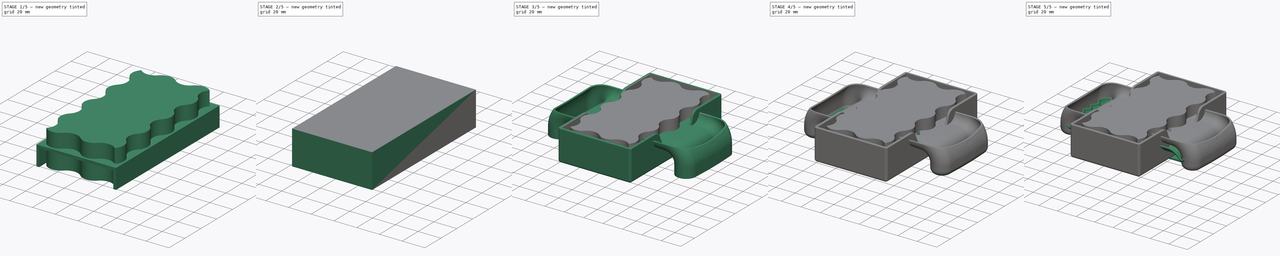
[diagram: build sequence overview — one tinted view per stage of 5, left to right]
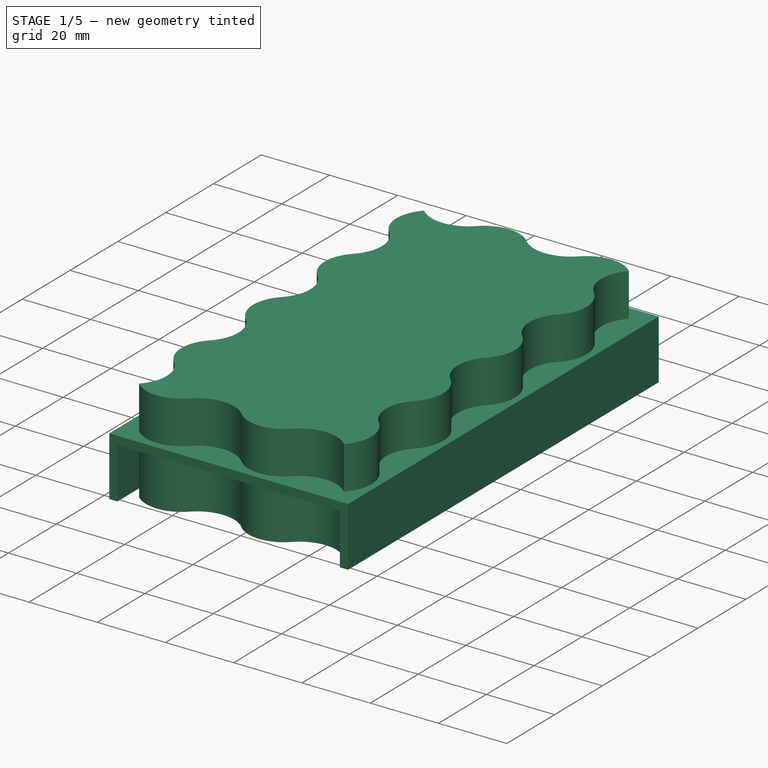
[diagram: stage 1 of 5 — iso view after this stage's code; geometry added in this stage tinted green]
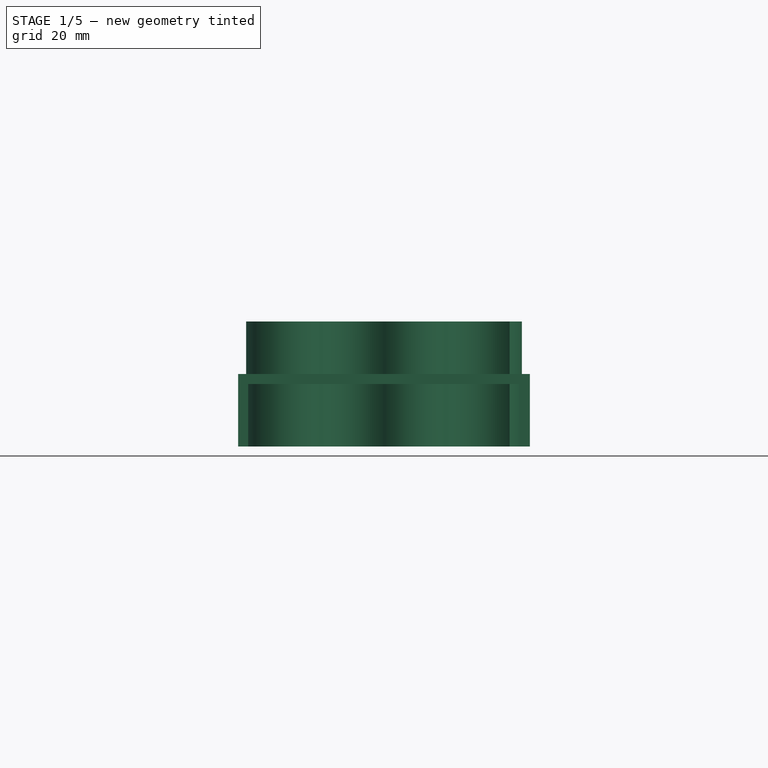
[diagram: stage 1 of 5 — front view after this stage's code; geometry added in this stage tinted green]
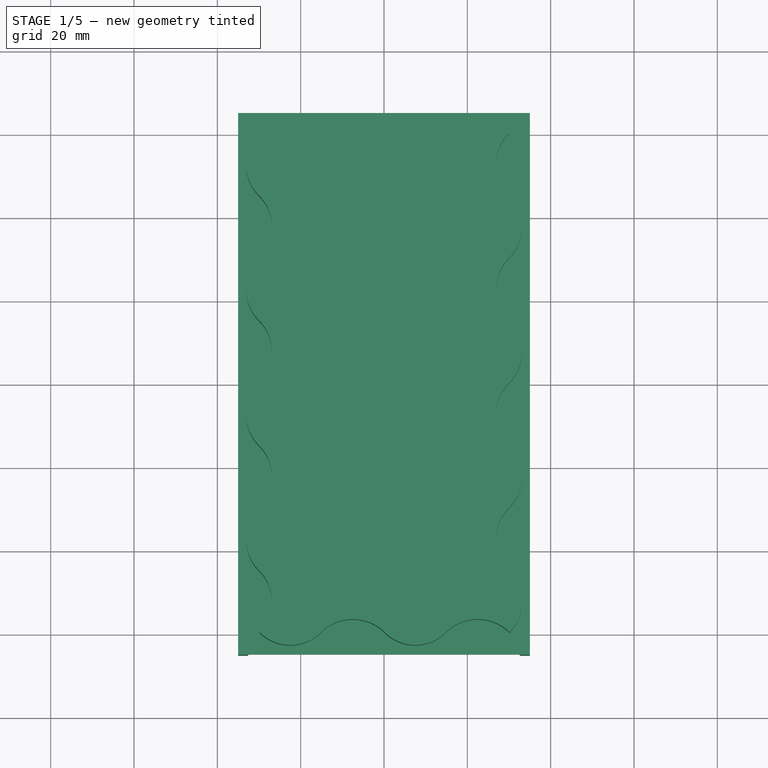
[diagram: stage 1 of 5 — top view after this stage's code; geometry added in this stage tinted green]
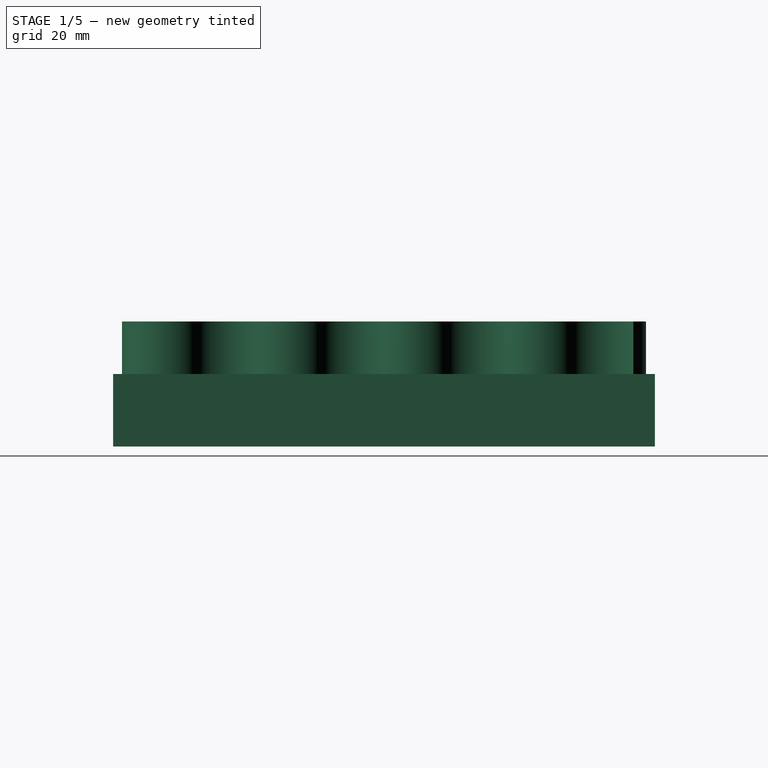
[diagram: stage 1 of 5 — right view after this stage's code; geometry added in this stage tinted green]
FCSTD DOCUMENT  (FreeCAD 1.1R20260108 (Git shallow))
Label: porte savon
License: Creative Commons Attribution-NonCommercial-ShareAlike 3.0
LicenseURL: https://creativecommons.org/licenses/by-nc-sa/3.0/
objects: Sketcher::SketchObject×19, PartDesign::Fillet×7, PartDesign::Pad×7, PartDesign::Pocket×7, PartDesign::Body×6, App::Point×6, PartDesign::LinearPattern×5, PartDesign::AdditivePipe×3, PartDesign::Mirrored×3, PartDesign::MultiTransform×3, PartDesign::SubShapeBinder×2, PartDesign::PolarPattern×1, PartDesign::Chamfer×1, PartDesign::Thickness×1
note: 148 computed .brp shape members not serialized (recipe doc carries the construction recipe); baked Part::Feature solids carry a one-line shape summary decoded from their .brp

FEATURE [PartDesign::Body] Body002  label="Modèle 3"
  AllowCompound = false
  Group = -> [Sketch007,Sketch008,AdditivePipe002,Sketch009,Pocket002,Fillet001,Pad001,Mirrored001,Fillet002,Fillet003,Sketch010,Pad002,MultiTransform,LinearPattern,PolarPattern,Mirrored002]
  Origin = -> Origin002
  Tip = -> MultiTransform
FEATURE [Sketcher::SketchObject] Sketch011
  ArcFitTolerance = 1e-06
  AttachmentSupport = -> [XZ_Plane003]
  ExternalTypes = [0]
  FullyConstrained = true
  MakeInternals = false
  MapMode = 5
  Placement = pos=(0,0,0) rot=(1,0,0;1.5708rad)
  sketch-geometry (9):
    g0: LineSegment StartX=-35 StartY=0 StartZ=0 EndX=-32.6 EndY=0 EndZ=0
    g1: LineSegment StartX=-32.6 StartY=0 StartZ=0 EndX=-32.6 EndY=15 EndZ=0
    g2: LineSegment StartX=-35 StartY=17.4 StartZ=0 EndX=-35 EndY=0 EndZ=0
    g3: LineSegment StartX=35 StartY=0 StartZ=0 EndX=32.6 EndY=0 EndZ=0
    g4: LineSegment StartX=32.6 StartY=0 StartZ=0 EndX=32.6 EndY=15 EndZ=0
    g5: LineSegment StartX=35 StartY=17.4 StartZ=0 EndX=35 EndY=0 EndZ=0
    g6: LineSegment StartX=-35 StartY=17.4 StartZ=0 EndX=35 EndY=17.4 EndZ=0
    g7: LineSegment StartX=32.6 StartY=15 StartZ=0 EndX=-32.6 EndY=15 EndZ=0
    g8: ArcOfCircle [constr] CenterX=-32.6 CenterY=15 CenterZ=0 NormalX=0 NormalY=0 NormalZ=1 AngleXU=0 Radius=2.4 StartAngle=1.5708 EndAngle=3.14159
  constraints (23):
    c: PointOnObject(g0,g-1)
    c: PointOnObject(g0,g-1)
    c: Coincident(g0,g1)
    c: Vertical(g1)
    c: Coincident(g2,g0)
    c: DistanceX(g0,g0) = 2.4
    c: DistanceY(g1,g1) = 15
    c: Vertical(g2)
    c: Coincident(g3,g4)
    c: Coincident(g5,g3)
    c: Vertical(g5)
    c: Symmetric(g2,g5,g-2)
    c: Symmetric(g4,g1,g-2)
    c: Horizontal(g3)
    c: Symmetric(g0,g3,g-2)
    c: Coincident(g6,g2)
    c: Coincident(g6,g5)
    c: Coincident(g7,g4)
    c: Coincident(g7,g1)
    c: DistanceX(g6,g6) = 70
    c: Coincident(g8,g1)
    c: Tangent(g8,g2) = -1.5708
    c: Tangent(g8,g6) = 1.5708
FEATURE [PartDesign::Pad] Pad003
  Direction = (0,-1,2e-16)
  Length = 130
  Length2 = 10
  Placement = pos=(0,0,0) rot=(1,0,0;1.5708rad)
  Profile = -> Sketch011
  ReferenceAxis = -> Sketch011 [N_Axis]
  Refine = true
  SideType = 2
  Suppressed = false
  Type = 0
  Type2 = 0
FEATURE [PartDesign::Body] Body003  label="Modèle  4 Lid"
  AllowCompound = false
  Group = -> [Sketch011,Pad003,Fillet004,Chamfer,Sketch013,Pocket004,MultiTransform001,LinearPattern001,LinearPattern002,Fillet005]
  Origin = -> Origin003
  Tip = -> Fillet005
FEATURE [PartDesign::LinearPattern] LinearPattern003
  Direction = -> X_Axis005
  Length = 30
  Length2 = 100
  Mode = 0
  Mode2 = 0
  Occurrences = 2
  Occurrences2 = 1
  Offset = 30
  Offset2 = 10
  Placement = pos=(0,0,0) rot=(1,0,0;1.5708rad)
  Refine = true
  Reversed2 = false
  SpacingPattern = [0]
  SpacingPattern2 = [0]
  Spacings = [-1]
  Suppressed = false
  TransformMode = 0
FEATURE [PartDesign::LinearPattern] LinearPattern004
  Direction = -> Y_Axis005
  Length = 90
  Length2 = 100
  Mode = 1
  Mode2 = 0
  Occurrences = 4
  Occurrences2 = 1
  Offset = 30
  Offset2 = 10
  Placement = pos=(0,0,0) rot=(1,0,0;1.5708rad)
  Refine = true
  Reversed = true
  Reversed2 = false
  SpacingPattern = [0]
  SpacingPattern2 = [0]
  Spacings = [-1,-1,-1]
  Suppressed = false
  TransformMode = 0
FEATURE [Sketcher::SketchObject] Sketch016
  ArcFitTolerance = 1e-06
  AttachmentSupport = -> [XZ_Plane005]
  ExternalTypes = [0]
  FullyConstrained = true
  MakeInternals = false
  MapMode = 5
  Placement = pos=(0,0,0) rot=(1,0,0;1.5708rad)
  sketch-geometry (4):
    g0: LineSegment StartX=-45 StartY=2.6 StartZ=0 EndX=45 EndY=2.6 EndZ=0
    g1: LineSegment StartX=45 StartY=0 StartZ=0 EndX=-45 EndY=0 EndZ=0
    g2: LineSegment StartX=-45 StartY=2.6 StartZ=0 EndX=-45 EndY=0 EndZ=0
    g3: LineSegment StartX=45 StartY=0 StartZ=0 EndX=45 EndY=2.6 EndZ=0
  constraints (10):
    c: Symmetric(g0,g0,g-2)
    c: Symmetric(g1,g1,g-2)
    c: DistanceX(g0,g0) = 90
    c: Coincident(g2,g0)
    c: Coincident(g2,g1)
    c: Coincident(g3,g1)
    c: Coincident(g3,g0)
    c: Vertical(g3)
    c: DistanceY(g2,g2) = 2.6
    c: PointOnObject(g1,g-1)
FEATURE [PartDesign::Pad] Pad005
  Direction = (0,-1,2e-16)
  Length = 130
  Length2 = 10
  Placement = pos=(0,0,0) rot=(1,0,0;1.5708rad)
  Profile = -> Sketch016
  ReferenceAxis = -> Sketch016 [N_Axis]
  Refine = true
  SideType = 2
  Suppressed = false
  Type = 0
  Type2 = 0
FEATURE [Sketcher::SketchObject] Sketch017
  ArcFitTolerance = 1e-06
  AttachmentSupport = -> [XY_Plane005]
  ExternalTypes = [0]
  FullyConstrained = true
  MakeInternals = false
  MapMode = 5
  sketch-geometry (19):
    g0: ArcOfCircle CenterX=-22.5 CenterY=67.5 CenterZ=0 NormalX=0 NormalY=0 NormalZ=1 AngleXU=0 Radius=12.1992 StartAngle=4.05026 EndAngle=5.37452
    g1: ArcOfCircle CenterX=-22.5 CenterY=37.5 CenterZ=0 NormalX=0 NormalY=0 NormalZ=1 AngleXU=0 Radius=12.1992 StartAngle=0.908669 EndAngle=2.23292
    g2: ArcOfCircle CenterX=-22.5 CenterY=52.5 CenterZ=0 NormalX=0 NormalY=0 NormalZ=1 AngleXU=0 Radius=9.22931 StartAngle=2.51944 EndAngle=3.76374
    g3: ArcOfCircle CenterX=-22.5 CenterY=52.5 CenterZ=0 NormalX=0 NormalY=0 NormalZ=1 AngleXU=0 Radius=9.22931 StartAngle=5.66104 EndAngle=6.90533
    g4: ArcOfCircle CenterX=-7.5 CenterY=52.5 CenterZ=0 NormalX=0 NormalY=0 NormalZ=1 AngleXU=0 Radius=9.22931 StartAngle=0.948648 EndAngle=2.19294
    g5: ArcOfCircle CenterX=-22.5 CenterY=52.5 CenterZ=0 NormalX=0 NormalY=0 NormalZ=1 AngleXU=0 Radius=12.1992 StartAngle=5.62106 EndAngle=6.94531
    g6: ArcOfCircle CenterX=7.5 CenterY=52.5 CenterZ=0 NormalX=0 NormalY=0 NormalZ=1 AngleXU=0 Radius=12.1992 StartAngle=2.47947 EndAngle=3.80372
    g7: ArcOfCircle CenterX=-7.5 CenterY=52.5 CenterZ=0 NormalX=0 NormalY=0 NormalZ=1 AngleXU=0 Radius=9.22931 StartAngle=4.09024 EndAngle=5.33454
    g8: ArcOfCircle CenterX=-22.5 CenterY=37.5 CenterZ=0 NormalX=0 NormalY=0 NormalZ=1 AngleXU=0 Radius=9.22931 StartAngle=0.948648 EndAngle=2.19294
    g9: ArcOfCircle CenterX=-22.5 CenterY=37.5 CenterZ=0 NormalX=0 NormalY=0 NormalZ=1 AngleXU=0 Radius=9.22931 StartAngle=4.09024 EndAngle=5.33454
    g10: ArcOfCircle CenterX=-7.5 CenterY=37.5 CenterZ=0 NormalX=0 NormalY=0 NormalZ=1 AngleXU=0 Radius=12.1992 StartAngle=2.47947 EndAngle=3.80372
    g11: ArcOfCircle CenterX=-37.5 CenterY=37.5 CenterZ=0 NormalX=0 NormalY=0 NormalZ=1 AngleXU=0 Radius=12.1992 StartAngle=5.62106 EndAngle=6.94531
    g12: ArcOfCircle CenterX=-7.5 CenterY=37.5 CenterZ=0 NormalX=0 NormalY=0 NormalZ=1 AngleXU=0 Radius=9.22931 StartAngle=2.51944 EndAngle=3.76374
    g13: ArcOfCircle CenterX=-7.5 CenterY=37.5 CenterZ=0 NormalX=0 NormalY=0 NormalZ=1 AngleXU=0 Radius=9.22931 StartAngle=5.66104 EndAngle=6.90533
    g14: ArcOfCircle CenterX=-7.5 CenterY=52.5 CenterZ=0 NormalX=0 NormalY=0 NormalZ=1 AngleXU=0 Radius=12.1992 StartAngle=4.05026 EndAngle=5.37452
    g15: ArcOfCircle CenterX=-7.5 CenterY=22.5 CenterZ=0 NormalX=0 NormalY=0 NormalZ=1 AngleXU=0 Radius=12.1992 StartAngle=0.908669 EndAngle=2.23292
    g16: LineSegment [constr] StartX=-27.8787 StartY=45 StartZ=0 EndX=-17.1213 EndY=45 EndZ=0
    g17: LineSegment [constr] StartX=-30 StartY=47.1213 StartZ=0 EndX=-30 EndY=57.8787 EndZ=0
    g18: ArcOfCircle [constr] CenterX=-22.5 CenterY=67.5 CenterZ=0 NormalX=0 NormalY=0 NormalZ=1 AngleXU=0 Radius=9.22931 StartAngle=4.09024 EndAngle=5.33454
  constraints (63):
    c: Coincident(g2,g0)
    c: Coincident(g2,g1)
    c: Coincident(g3,g0)
    c: Coincident(g3,g1)
    c: Coincident(g5,g3)
    c: Coincident(g5,g4)
    c: Coincident(g6,g4)
    c: Coincident(g7,g5)
    c: Coincident(g7,g6)
    c: Horizontal(g4,g4)
    c: Horizontal(g5,g6)
    c: Vertical(g0,g1)
    c: Vertical(g1,g0)
    c: PointOnObject(g0,g4)
    c: Equal(g5,g1)
    c: Equal(g4,g7)
    c: PointOnObject(g5,g1)
    c: Equal(g6,g5)
    c: Coincident(g10,g8)
    c: Coincident(g10,g9)
    c: Coincident(g11,g8)
    c: Coincident(g11,g9)
    c: Horizontal(g9,g9)
    c: Horizontal(g8,g8)
    c: PointOnObject(g8,g3)
    c: Equal(g8,g7)
    c: Equal(g8,g9)
    c: Horizontal(g11,g1)
    c: Equal(g11,g10)
    c: Equal(g10,g5)
    c: Coincident(g12,g10)
    c: Coincident(g13,g10)
    c: Coincident(g14,g7)
    c: Coincident(g14,g12)
    c: Coincident(g14,g13)
    c: Coincident(g15,g12)
    c: Coincident(g15,g13)
    c: Vertical(g12,g12)
    c: Horizontal(g12,g13)
    c: Equal(g13,g12)
    c: Equal(g12,g8)
    c: Equal(g14,g15)
    c: Equal(g15,g10)
    c: PointOnObject(g8,g14)
    c: Distance(g8,g1) = 3
    c: Coincident(g4,g7)
    c: Horizontal(g0,g0)
    c: Coincident(g2,g3)
    c: Coincident(g16,g8)
    c: Coincident(g16,g8)
    c: Coincident(g17,g1)
    c: Coincident(g17,g0)
    c: Equal(g17,g16)
    c: Equal(g18,g8)
    c: Symmetric(g18,g8,g2)
    c: DistanceY(g9,g18) = 30
    c: Vertical(g18,g2)
    c: Coincident(g8,g9)
    c: Coincident(g8,g1)
    c: Coincident(g0,g18)
    c: Vertical(g18,g8)
    c: PointOnObject(g13,g-2)
    c: Distance(g9,g-1) = 30
FEATURE [PartDesign::Pocket] Pocket006
  BaseFeature = -> Pad005
  Direction = (0,0,-1)
  Length = 5
  Length2 = 5
  Placement = pos=(0,0,0) rot=(1,0,0;1.5708rad)
  Profile = -> Sketch017
  ReferenceAxis = -> Sketch017 [N_Axis]
  Refine = true
  SideType = 2
  Suppressed = false
  Type = 1
  Type2 = 0
FEATURE [PartDesign::MultiTransform] MultiTransform002
  BaseFeature = -> Pocket006
  Originals = -> [Pocket006]
  Placement = pos=(0,0,0) rot=(1,0,0;1.5708rad)
  Refine = true
  Suppressed = false
  TransformMode = 0
  Transformations = -> [LinearPattern003,LinearPattern004]
FEATURE [Sketcher::SketchObject] Sketch018
  ArcFitTolerance = 1e-06
  AttachmentSupport = -> [XY_Plane005]
  ExternalGeometry = -> [MultiTransform002]
  ExternalTypes = [0]
  FullyConstrained = true
  MakeInternals = false
  MapMode = 5
  sketch-geometry (35):
    g0: ArcOfCircle CenterX=-22.5 CenterY=52.5 CenterZ=0 NormalX=0 NormalY=0 NormalZ=1 AngleXU=0 Radius=10.6066 StartAngle=2.37649 EndAngle=3.92699
    g1: ArcOfCircle CenterX=-37.5 CenterY=37.5 CenterZ=0 NormalX=0 NormalY=0 NormalZ=1 AngleXU=0 Radius=10.6066 StartAngle=5.49779 EndAngle=7.06858
    g2: ArcOfCircle CenterX=-22.5 CenterY=22.5 CenterZ=0 NormalX=0 NormalY=0 NormalZ=1 AngleXU=0 Radius=10.6066 StartAngle=2.35619 EndAngle=3.92699
    g3: ArcOfCircle CenterX=-37.5 CenterY=7.5 CenterZ=0 NormalX=0 NormalY=0 NormalZ=1 AngleXU=0 Radius=10.6066 StartAngle=5.49779 EndAngle=7.06858
    g4: ArcOfCircle CenterX=-22.5 CenterY=-7.5 CenterZ=0 NormalX=0 NormalY=0 NormalZ=1 AngleXU=0 Radius=10.6066 StartAngle=2.35619 EndAngle=3.92699
    g5: ArcOfCircle CenterX=-37.5 CenterY=-22.5 CenterZ=0 NormalX=0 NormalY=0 NormalZ=1 AngleXU=0 Radius=10.6066 StartAngle=5.49779 EndAngle=7.06858
    g6: ArcOfCircle CenterX=-22.5 CenterY=-37.5 CenterZ=0 NormalX=0 NormalY=0 NormalZ=1 AngleXU=0 Radius=10.6066 StartAngle=2.35619 EndAngle=3.92699
    g7: ArcOfCircle CenterX=-37.5 CenterY=-52.5 CenterZ=0 NormalX=0 NormalY=0 NormalZ=1 AngleXU=0 Radius=10.6066 StartAngle=5.51809 EndAngle=7.06858
    g8: ArcOfCircle CenterX=-22.5 CenterY=-52.5 CenterZ=0 NormalX=0 NormalY=0 NormalZ=1 AngleXU=0 Radius=10.3913 StartAngle=3.92678 EndAngle=5.49779
    g9: ArcOfCircle CenterX=-7.5 CenterY=-67.5 CenterZ=0 NormalX=0 NormalY=0 NormalZ=1 AngleXU=0 Radius=10.8219 StartAngle=0.785398 EndAngle=2.35619
    g10: ArcOfCircle CenterX=7.5 CenterY=-52.5 CenterZ=0 NormalX=0 NormalY=0 NormalZ=1 AngleXU=0 Radius=10.3913 StartAngle=3.92699 EndAngle=5.49779
    g11: ArcOfCircle CenterX=22.5 CenterY=-67.5 CenterZ=0 NormalX=0 NormalY=0 NormalZ=1 AngleXU=0 Radius=10.8219 StartAngle=0.7856 EndAngle=2.35619
    g12: ArcOfCircle CenterX=22.5 CenterY=-52.5 CenterZ=0 NormalX=0 NormalY=0 NormalZ=1 AngleXU=0 Radius=10.6066 StartAngle=5.51809 EndAngle=7.06858
    g13: ArcOfCircle CenterX=37.5 CenterY=-37.5 CenterZ=0 NormalX=0 NormalY=0 NormalZ=1 AngleXU=0 Radius=10.6066 StartAngle=2.35619 EndAngle=3.92699
    g14: ArcOfCircle CenterX=22.5 CenterY=-22.5 CenterZ=0 NormalX=0 NormalY=0 NormalZ=1 AngleXU=0 Radius=10.6066 StartAngle=5.49779 EndAngle=7.06858
    g15: ArcOfCircle CenterX=37.5 CenterY=-7.5 CenterZ=0 NormalX=0 NormalY=0 NormalZ=1 AngleXU=0 Radius=10.6066 StartAngle=2.35619 EndAngle=3.92699
    g16: ArcOfCircle CenterX=22.5 CenterY=7.5 CenterZ=0 NormalX=0 NormalY=0 NormalZ=1 AngleXU=0 Radius=10.6066 StartAngle=5.49779 EndAngle=7.06858
    g17: ArcOfCircle CenterX=37.5 CenterY=22.5 CenterZ=0 NormalX=0 NormalY=0 NormalZ=1 AngleXU=0 Radius=10.6066 StartAngle=2.35619 EndAngle=3.92699
    g18: ArcOfCircle CenterX=22.5 CenterY=37.5 CenterZ=0 NormalX=0 NormalY=0 NormalZ=1 AngleXU=0 Radius=10.6066 StartAngle=5.49779 EndAngle=7.06858
    g19: ArcOfCircle CenterX=37.5 CenterY=52.5 CenterZ=0 NormalX=0 NormalY=0 NormalZ=1 AngleXU=0 Radius=10.6066 StartAngle=2.37649 EndAngle=3.92699
    g20: ArcOfCircle CenterX=22.5 CenterY=52.5 CenterZ=0 NormalX=0 NormalY=0 NormalZ=1 AngleXU=0 Radius=10.3913 StartAngle=0.785188 EndAngle=2.35619
    g21: ArcOfCircle CenterX=7.5 CenterY=67.5 CenterZ=0 NormalX=0 NormalY=0 NormalZ=1 AngleXU=0 Radius=10.8219 StartAngle=3.92699 EndAngle=5.49779
    g22: ArcOfCircle CenterX=-7.5 CenterY=52.5 CenterZ=0 NormalX=0 NormalY=0 NormalZ=1 AngleXU=0 Radius=10.3913 StartAngle=0.785398 EndAngle=2.35619
    g23: ArcOfCircle CenterX=-22.5 CenterY=67.5 CenterZ=0 NormalX=0 NormalY=0 NormalZ=1 AngleXU=0 Radius=10.8219 StartAngle=3.92719 EndAngle=5.49779
    g24: ArcOfCircle [constr] CenterX=30 CenterY=-57.8787 CenterZ=0 NormalX=0 NormalY=0 NormalZ=1 AngleXU=0 Radius=1.37729 StartAngle=4.05026 EndAngle=5.66104
    g25: LineSegment [constr] StartX=-22.5 StartY=67.5 StartZ=0 EndX=-22.5 EndY=67.5 EndZ=0
    g26: LineSegment [constr] StartX=-7.5 StartY=-67.5 StartZ=0 EndX=-7.5 EndY=-67.5 EndZ=0
    g27: LineSegment [constr] StartX=-37.5 StartY=37.5 StartZ=0 EndX=-37.5 EndY=37.5 EndZ=0
    g28: LineSegment [constr] StartX=37.5 StartY=52.5 StartZ=0 EndX=37.5 EndY=52.5 EndZ=0
    g29: ArcOfCircle [constr] CenterX=-30 CenterY=57.8787 CenterZ=0 NormalX=0 NormalY=0 NormalZ=1 AngleXU=0 Radius=1.37729 StartAngle=0.908669 EndAngle=2.51944
    g30: LineSegment StartX=-60 StartY=87.5 StartZ=0 EndX=-60 EndY=-87.5 EndZ=0
    g31: LineSegment StartX=-60 StartY=-87.5 StartZ=0 EndX=60 EndY=-87.5 EndZ=0
    g32: LineSegment StartX=60 StartY=-87.5 StartZ=0 EndX=60 EndY=87.5 EndZ=0
    g33: LineSegment StartX=60 StartY=87.5 StartZ=0 EndX=-60 EndY=87.5 EndZ=0
    g34: GeomPoint [constr] X=0 Y=0 Z=0
  constraints (88):
    c: Coincident(g0,g-3)
    c: Coincident(g2,g-5)
    c: PointOnObject(g3,g-1)
    c: Coincident(g4,g-7)
    c: Coincident(g6,g-9)
    c: Coincident(g8,g-11)
    c: Coincident(g8,g7)
    c: Coincident(g10,g-13)
    c: Coincident(g12,g-15)
    c: Coincident(g12,g11)
    c: Coincident(g14,g-17)
    c: PointOnObject(g15,g-1)
    c: Coincident(g16,g-19)
    c: Coincident(g18,g-21)
    c: Coincident(g20,g-23)
    c: Coincident(g20,g19)
    c: Coincident(g22,g-25)
    c: Coincident(g23,g0)
    c: Tangent(g0,g1) = 1.5708
    c: Tangent(g1,g2) = 1.5708
    c: Tangent(g2,g3) = 1.5708
    c: Tangent(g3,g4) = 1.5708
    c: Tangent(g4,g5) = 1.5708
    c: Tangent(g5,g6) = 1.5708
    c: Tangent(g6,g7) = 1.5708
    c: Tangent(g8,g9) = 1.5708
    c: Tangent(g9,g10) = 1.5708
    c: Tangent(g11,g10) = 1.5708
    c: Tangent(g12,g13) = 1.5708
    c: Tangent(g13,g14) = 1.5708
    c: Tangent(g14,g15) = 1.5708
    c: Tangent(g15,g16) = 1.5708
    c: Tangent(g16,g17) = 1.5708
    c: Tangent(g17,g18) = 1.5708
    c: Tangent(g18,g19) = 1.5708
    c: Tangent(g20,g21) = 1.5708
    c: Tangent(g22,g23) = 1.5708
    c: Tangent(g22,g21) = 1.5708
    c: Horizontal(g7,g-10)
    c: Horizontal(g5,g-8)
    c: Horizontal(g3,g-6)
    c: Horizontal(g1,g-4)
    c: Horizontal(g19,g-22)
    c: Horizontal(g17,g-20)
    c: Horizontal(g15,g-18)
    c: Horizontal(g13,g-16)
    c: Vertical(g11,g-14)
    c: Vertical(g9,g-12)
    c: Vertical(g23,g-26)
    c: Vertical(g21,g-24)
    c: Horizontal(g23,g21)
    c: Vertical(g1,g3)
    c: Vertical(g3,g5)
    c: Vertical(g5,g7)
    c: Horizontal(g9,g11)
    c: Coincident(g24,g-15)
    c: Tangent(g24,g12) = -1.5708
    c: Tangent(g24,g11) = 1.5708
    c: Coincident(g25,g-26)
    c: Coincident(g25,g23)
    c: Coincident(g26,g9)
    c: Coincident(g26,g-12)
    c: Equal(g26,g25)
    c: Coincident(g27,g1)
    c: Coincident(g27,g-4)
    c: Equal(g27,g25)
    c: Coincident(g28,g-22)
    c: Coincident(g28,g19)
    c: Equal(g28,g27)
    c: Vertical(g19,g17)
    c: Vertical(g17,g15)
    c: Vertical(g15,g13)
    c: Coincident(g29,g-26)
    c: Tangent(g29,g23) = 1.5708
    c: Tangent(g29,g0) = -1.5708
    c: Coincident(g30,g31)
    c: Coincident(g31,g32)
    c: Coincident(g32,g33)
    c: Coincident(g33,g30)
    c: Vertical(g30)
    c: Vertical(g32)
    c: Horizontal(g31)
    c: Horizontal(g33)
    c: Symmetric(g32,g30,g34)
    c: Coincident(g34,g-1)
    c: DistanceX(g31,g31) = 120
    c: DistanceY(g32,g32) = 175
    c: Vertical(g27)
FEATURE [PartDesign::Pocket] Pocket007
  BaseFeature = -> MultiTransform002
  Direction = (0,0,-1)
  Length = 5
  Length2 = 5
  Placement = pos=(0,0,0) rot=(1,0,0;1.5708rad)
  Profile = -> Sketch018
  ReferenceAxis = -> Sketch018 [N_Axis]
  Refine = true
  Reversed = true
  SideType = 0
  Suppressed = false
  Type = 1
  Type2 = 0
FEATURE [Sketcher::SketchObject] Sketch019
  ArcFitTolerance = 1e-06
  AttachmentSupport = -> [XY_Plane005]
  ExternalGeometry = -> [MultiTransform002]
  ExternalTypes = [0]
  FullyConstrained = true
  MakeInternals = false
  MapMode = 5
  sketch-geometry (31):
    g0: ArcOfCircle CenterX=-22.5 CenterY=52.5 CenterZ=0 NormalX=0 NormalY=0 NormalZ=1 AngleXU=0 Radius=10.6066 StartAngle=2.37649 EndAngle=3.92699
    g1: ArcOfCircle CenterX=-37.5 CenterY=37.5 CenterZ=0 NormalX=0 NormalY=0 NormalZ=1 AngleXU=0 Radius=10.6066 StartAngle=5.49779 EndAngle=7.06858
    g2: ArcOfCircle CenterX=-22.5 CenterY=22.5 CenterZ=0 NormalX=0 NormalY=0 NormalZ=1 AngleXU=0 Radius=10.6066 StartAngle=2.35619 EndAngle=3.92699
    g3: ArcOfCircle CenterX=-37.5 CenterY=7.5 CenterZ=0 NormalX=0 NormalY=0 NormalZ=1 AngleXU=0 Radius=10.6066 StartAngle=5.49779 EndAngle=7.06858
    g4: ArcOfCircle CenterX=-22.5 CenterY=-7.5 CenterZ=0 NormalX=0 NormalY=0 NormalZ=1 AngleXU=0 Radius=10.6066 StartAngle=2.35619 EndAngle=3.92699
    g5: ArcOfCircle CenterX=-37.5 CenterY=-22.5 CenterZ=0 NormalX=0 NormalY=0 NormalZ=1 AngleXU=0 Radius=10.6066 StartAngle=5.49779 EndAngle=7.06858
    g6: ArcOfCircle CenterX=-22.5 CenterY=-37.5 CenterZ=0 NormalX=0 NormalY=0 NormalZ=1 AngleXU=0 Radius=10.6066 StartAngle=2.35619 EndAngle=3.92699
    g7: ArcOfCircle CenterX=-37.5 CenterY=-52.5 CenterZ=0 NormalX=0 NormalY=0 NormalZ=1 AngleXU=0 Radius=10.6066 StartAngle=5.51809 EndAngle=7.06858
    g8: ArcOfCircle CenterX=-22.5 CenterY=-52.5 CenterZ=0 NormalX=0 NormalY=0 NormalZ=1 AngleXU=0 Radius=10.3913 StartAngle=3.92678 EndAngle=5.49779
    g9: ArcOfCircle CenterX=-7.5 CenterY=-67.5 CenterZ=0 NormalX=0 NormalY=0 NormalZ=1 AngleXU=0 Radius=10.8219 StartAngle=0.785398 EndAngle=2.35619
    g10: ArcOfCircle CenterX=7.5 CenterY=-52.5 CenterZ=0 NormalX=0 NormalY=0 NormalZ=1 AngleXU=0 Radius=10.3913 StartAngle=3.92699 EndAngle=5.49779
    g11: ArcOfCircle CenterX=22.5 CenterY=-67.5 CenterZ=0 NormalX=0 NormalY=0 NormalZ=1 AngleXU=0 Radius=10.8219 StartAngle=0.7856 EndAngle=2.35619
    g12: ArcOfCircle CenterX=22.5 CenterY=-52.5 CenterZ=0 NormalX=0 NormalY=0 NormalZ=1 AngleXU=0 Radius=10.6066 StartAngle=5.51809 EndAngle=7.06858
    g13: ArcOfCircle CenterX=37.5 CenterY=-37.5 CenterZ=0 NormalX=0 NormalY=0 NormalZ=1 AngleXU=0 Radius=10.6066 StartAngle=2.35619 EndAngle=3.92699
    g14: ArcOfCircle CenterX=22.5 CenterY=-22.5 CenterZ=0 NormalX=0 NormalY=0 NormalZ=1 AngleXU=0 Radius=10.6066 StartAngle=5.49779 EndAngle=7.06858
    g15: ArcOfCircle CenterX=37.5 CenterY=-7.5 CenterZ=0 NormalX=0 NormalY=0 NormalZ=1 AngleXU=0 Radius=10.6066 StartAngle=2.35619 EndAngle=3.92699
    g16: ArcOfCircle CenterX=22.5 CenterY=7.5 CenterZ=0 NormalX=0 NormalY=0 NormalZ=1 AngleXU=0 Radius=10.6066 StartAngle=5.49779 EndAngle=7.06858
    g17: ArcOfCircle CenterX=37.5 CenterY=22.5 CenterZ=0 NormalX=0 NormalY=0 NormalZ=1 AngleXU=0 Radius=10.6066 StartAngle=2.35619 EndAngle=3.92699
    g18: ArcOfCircle CenterX=22.5 CenterY=37.5 CenterZ=0 NormalX=0 NormalY=0 NormalZ=1 AngleXU=0 Radius=10.6066 StartAngle=5.49779 EndAngle=7.06858
    g19: ArcOfCircle CenterX=37.5 CenterY=52.5 CenterZ=0 NormalX=0 NormalY=0 NormalZ=1 AngleXU=0 Radius=10.6066 StartAngle=2.37649 EndAngle=3.92699
    g20: ArcOfCircle CenterX=22.5 CenterY=52.5 CenterZ=0 NormalX=0 NormalY=0 NormalZ=1 AngleXU=0 Radius=10.3913 StartAngle=0.785188 EndAngle=2.35619
    g21: ArcOfCircle CenterX=7.5 CenterY=67.5 CenterZ=0 NormalX=0 NormalY=0 NormalZ=1 AngleXU=0 Radius=10.8219 StartAngle=3.92699 EndAngle=5.49779
    g22: ArcOfCircle CenterX=-7.5 CenterY=52.5 CenterZ=0 NormalX=0 NormalY=0 NormalZ=1 AngleXU=0 Radius=10.3913 StartAngle=0.785398 EndAngle=2.35619
    g23: ArcOfCircle CenterX=-22.5 CenterY=67.5 CenterZ=0 NormalX=0 NormalY=0 NormalZ=1 AngleXU=0 Radius=10.8219 StartAngle=3.92719 EndAngle=5.49779
    g24: ArcOfCircle [constr] CenterX=30 CenterY=-57.8787 CenterZ=0 NormalX=0 NormalY=0 NormalZ=1 AngleXU=0 Radius=1.37729 StartAngle=4.05026 EndAngle=5.66104
    g25: LineSegment [constr] StartX=-22.5 StartY=67.5 StartZ=0 EndX=-22.5 EndY=67.5 EndZ=0
    g26: LineSegment [constr] StartX=-7.5 StartY=-67.5 StartZ=0 EndX=-7.5 EndY=-67.5 EndZ=0
    g27: LineSegment [constr] StartX=-37.5 StartY=37.5 StartZ=0 EndX=-37.5 EndY=37.5 EndZ=0
    g28: LineSegment [constr] StartX=37.5 StartY=52.5 StartZ=0 EndX=37.5 EndY=52.5 EndZ=0
    g29: ArcOfCircle [constr] CenterX=-30 CenterY=57.8787 CenterZ=0 NormalX=0 NormalY=0 NormalZ=1 AngleXU=0 Radius=1.37729 StartAngle=0.908669 EndAngle=2.51944
    g30: GeomPoint [constr] X=0 Y=0 Z=0
  constraints (77):
    c: Coincident(g0,g-3)
    c: Coincident(g2,g-5)
    c: PointOnObject(g3,g-1)
    c: Coincident(g4,g-7)
    c: Coincident(g6,g-9)
    c: Coincident(g8,g-11)
    c: Coincident(g8,g7)
    c: Coincident(g10,g-13)
    c: Coincident(g12,g-15)
    c: Coincident(g12,g11)
    c: Coincident(g14,g-17)
    c: PointOnObject(g15,g-1)
    c: Coincident(g16,g-19)
    c: Coincident(g18,g-21)
    c: Coincident(g20,g-23)
    c: Coincident(g20,g19)
    c: Coincident(g22,g-25)
    c: Coincident(g23,g0)
    c: Tangent(g0,g1) = 1.5708
    c: Tangent(g1,g2) = 1.5708
    c: Tangent(g2,g3) = 1.5708
    c: Tangent(g3,g4) = 1.5708
    c: Tangent(g4,g5) = 1.5708
    c: Tangent(g5,g6) = 1.5708
    c: Tangent(g6,g7) = 1.5708
    c: Tangent(g8,g9) = 1.5708
    c: Tangent(g9,g10) = 1.5708
    c: Tangent(g11,g10) = 1.5708
    c: Tangent(g12,g13) = 1.5708
    c: Tangent(g13,g14) = 1.5708
    c: Tangent(g14,g15) = 1.5708
    c: Tangent(g15,g16) = 1.5708
    c: Tangent(g16,g17) = 1.5708
    c: Tangent(g17,g18) = 1.5708
    c: Tangent(g18,g19) = 1.5708
    c: Tangent(g20,g21) = 1.5708
    c: Tangent(g22,g23) = 1.5708
    c: Tangent(g22,g21) = 1.5708
    c: Horizontal(g7,g-10)
    c: Horizontal(g5,g-8)
    c: Horizontal(g3,g-6)
    c: Horizontal(g1,g-4)
    c: Horizontal(g19,g-22)
    c: Horizontal(g17,g-20)
    c: Horizontal(g15,g-18)
    c: Horizontal(g13,g-16)
    c: Vertical(g11,g-14)
    c: Vertical(g9,g-12)
    c: Vertical(g23,g-26)
    c: Vertical(g21,g-24)
    c: Horizontal(g23,g21)
    c: Vertical(g1,g3)
    c: Vertical(g3,g5)
    c: Vertical(g5,g7)
    c: Horizontal(g9,g11)
    c: Coincident(g24,g-15)
    c: Tangent(g24,g12) = -1.5708
    c: Tangent(g24,g11) = 1.5708
    c: Coincident(g25,g-26)
    c: Coincident(g25,g23)
    c: Coincident(g26,g9)
    c: Coincident(g26,g-12)
    c: Equal(g26,g25)
    c: Coincident(g27,g1)
    c: Coincident(g27,g-4)
    c: Equal(g27,g25)
    c: Coincident(g28,g-22)
    c: Coincident(g28,g19)
    c: Equal(g28,g27)
    c: Vertical(g19,g17)
    c: Vertical(g17,g15)
    c: Vertical(g15,g13)
    c: Coincident(g29,g-26)
    c: Tangent(g29,g23) = 1.5708
    c: Tangent(g29,g0) = -1.5708
    c: Coincident(g30,g-1)
    c: Vertical(g27)
FEATURE [PartDesign::Pad] Pad006
  BaseFeature = -> Pocket007
  Direction = (0,0,1)
  Length = 30
  Length2 = 10
  Placement = pos=(0,0,0) rot=(1,0,0;1.5708rad)
  Profile = -> Sketch019
  ReferenceAxis = -> Sketch019 [N_Axis]
  Refine = true
  SideType = 0
  Suppressed = false
  Type = 0
  Type2 = 0
FEATURE [PartDesign::Body] Body005  label="5"
  AllowCompound = false
  Group = -> [Sketch016,Pad005,Sketch017,Pocket006,MultiTransform002,LinearPattern003,LinearPattern004,Sketch018,Pocket007,Sketch019,Pad006]
  Origin = -> Origin005
  Tip = -> Pad006
FEATURE [App::Point] Origin006  label="Origine"
  Role = Origin
FEATURE [App::Point] Origin007  label="Origine"
  Role = Origin
FEATURE [App::Point] Origin008  label="Origine"
  Role = Origin
FEATURE [App::Point] Origin009  label="Origine"
  Role = Origin
FEATURE [App::Point] Origin010  label="Origine"
  Role = Origin
FEATURE [App::Point] Origin011  label="Origine"
  Role = Origin
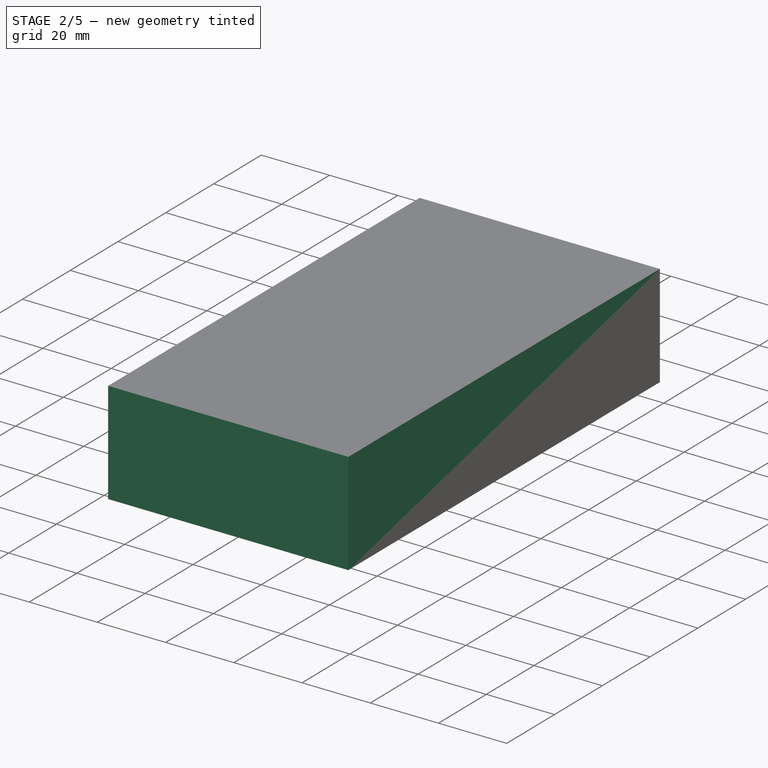
[diagram: stage 2 of 5 — iso view after this stage's code; geometry added in this stage tinted green]
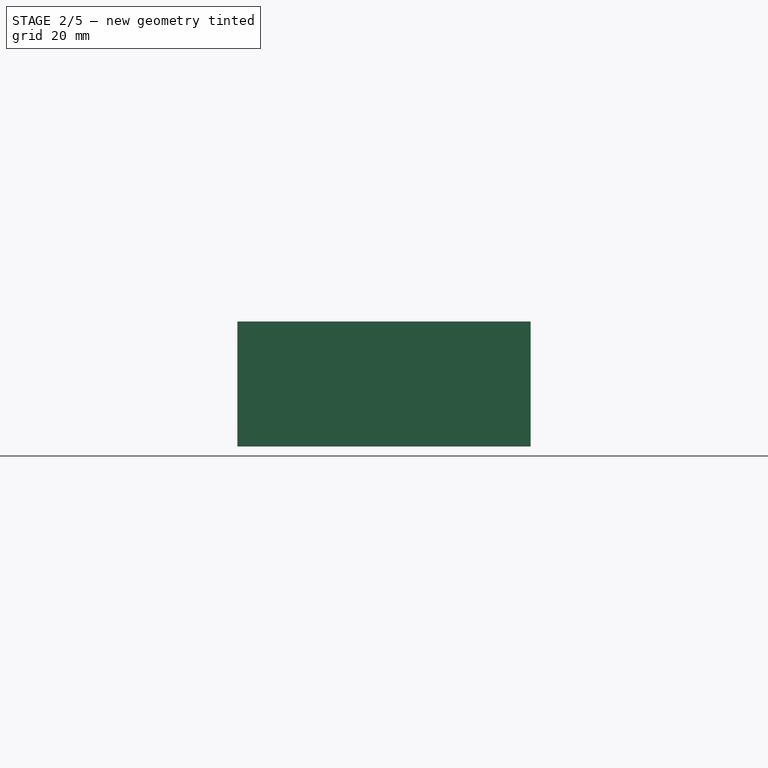
[diagram: stage 2 of 5 — front view after this stage's code; geometry added in this stage tinted green]
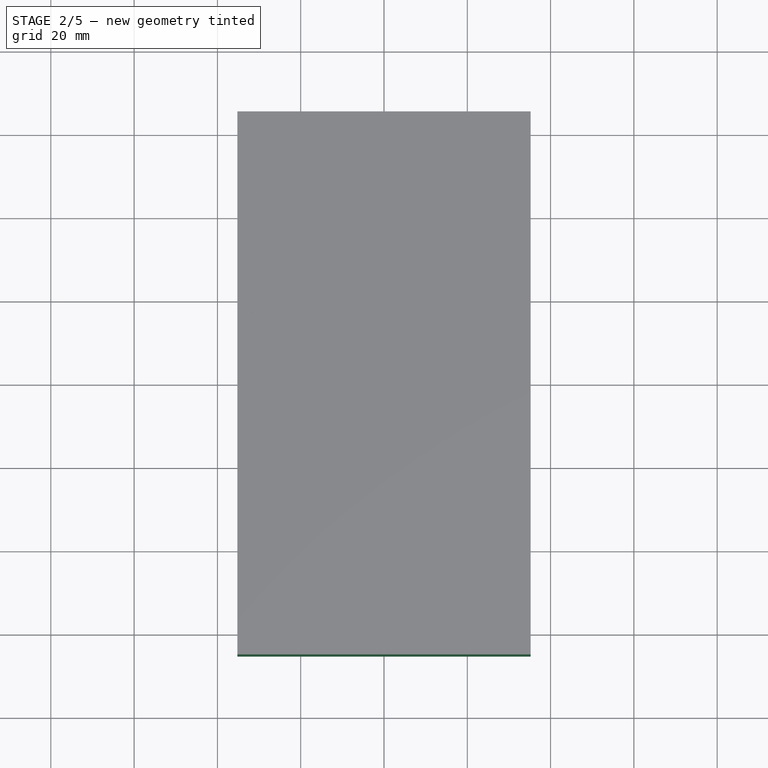
[diagram: stage 2 of 5 — top view after this stage's code; geometry added in this stage tinted green]
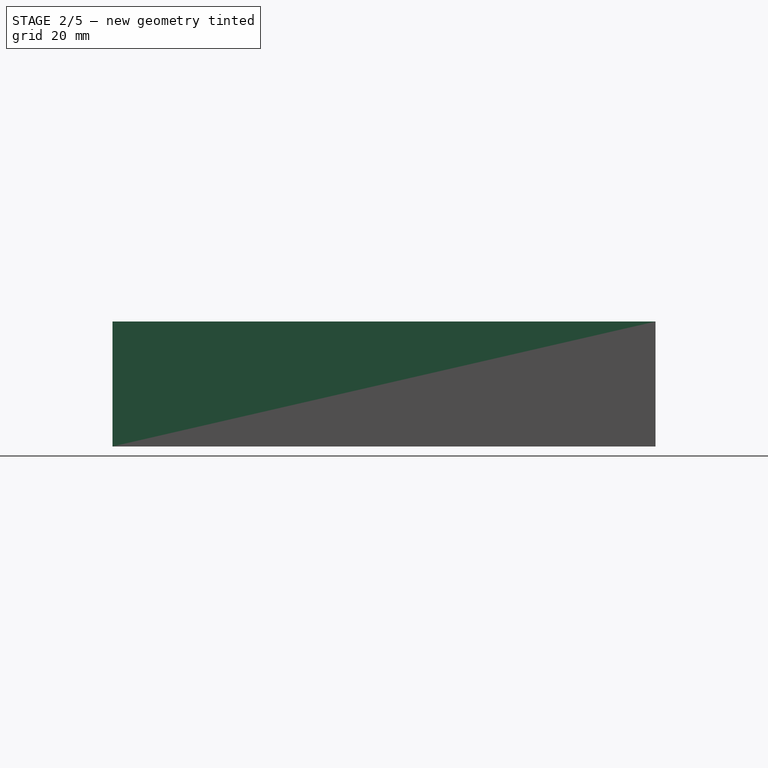
[diagram: stage 2 of 5 — right view after this stage's code; geometry added in this stage tinted green]
FEATURE [PartDesign::Fillet] Fillet004
  Base = -> Pad003 [Edge10,Edge22,Edge9,Edge21]
  BaseFeature = -> Pad003
  Placement = pos=(0,0,0) rot=(1,0,0;1.5708rad)
  Radius = 4
  Refine = true
  SupportTransform = false
  Suppressed = false
  UseAllEdges = false
FEATURE [PartDesign::Chamfer] Chamfer
  Angle = 45
  Base = -> Fillet004 [Face2,Face14]
  BaseFeature = -> Fillet004
  ChamferType = 0
  FlipDirection = false
  Placement = pos=(0,0,0) rot=(1,0,0;1.5708rad)
  Refine = true
  Size = 0.6
  Size2 = 1
  SupportTransform = false
  Suppressed = false
  UseAllEdges = false
FEATURE [PartDesign::SubShapeBinder] Binder001
  BindCopyOnChange = 0
  BindMode = 0
  ClaimChildren = false
  Context = -> Body004 [Binder001.]
  Fuse = false
  MakeFace = true
  OffsetFill = false
  OffsetIntersection = false
  OffsetJoinType = 0
  OffsetOpenResult = false
  PartialLoad = false
  Refine = true
  Relative = true
  Support = -> [Body003[Pad003.Face1]]
  _Version = 2
FEATURE [Sketcher::SketchObject] Sketch014
  ArcFitTolerance = 1e-06
  AttachmentSupport = -> [XY_Plane004]
  ExternalGeometry = -> [Binder001]
  ExternalTypes = [0]
  FullyConstrained = false
  MakeInternals = false
  MapMode = 5
  sketch-geometry (6):
    g0: LineSegment StartX=-35.2 StartY=-65.2 StartZ=0 EndX=35.2 EndY=-65.2 EndZ=0
    g1: LineSegment StartX=35.2 StartY=-65.2 StartZ=0 EndX=35.2 EndY=65.2 EndZ=0
    g2: LineSegment StartX=35.2 StartY=65.2 StartZ=0 EndX=-35.2 EndY=65.2 EndZ=0
    g3: LineSegment StartX=-35.2 StartY=65.2 StartZ=0 EndX=-35.2 EndY=-65.2 EndZ=0
    g4: GeomPoint [constr] X=0 Y=0 Z=0
    g5: ArcOfCircle [constr] CenterX=-35 CenterY=65 CenterZ=0 NormalX=0 NormalY=0 NormalZ=1 AngleXU=0 Radius=0.2 StartAngle=1.5708 EndAngle=3.14159
  constraints (13):
    c: Coincident(g0,g1)
    c: Coincident(g1,g2)
    c: Coincident(g2,g3)
    c: Coincident(g3,g0)
    c: Horizontal(g0)
    c: Horizontal(g2)
    c: Vertical(g1)
    c: Vertical(g3)
    c: Symmetric(g2,g0,g4)
    c: Coincident(g4,g-1)
    c: Tangent(g5,g3) = -1.5708
    c: Tangent(g5,g2) = -1.5708
    c: Radius(g5) = 0.2
FEATURE [PartDesign::Pad] Pad004
  Direction = (0,0,1)
  Length = 30
  Length2 = 10
  Profile = -> Sketch014
  ReferenceAxis = -> Sketch014 [N_Axis]
  Refine = true
  SideType = 0
  Suppressed = false
  Type = 0
  Type2 = 0
FEATURE [PartDesign::Body] Body004  label="Modèle 4 BoxBox"
  AllowCompound = false
  Group = -> [Binder001,Sketch014,Pad004,Thickness,Sketch015,Pocket005,Fillet006]
  Origin = -> Origin004
  Tip = -> Fillet006
FEATURE [PartDesign::LinearPattern] LinearPattern001
  Direction = -> X_Axis003
  Length = 25
  Length2 = 100
  Mode = 0
  Mode2 = 0
  Occurrences = 2
  Occurrences2 = 1
  Offset = 25
  Offset2 = 10
  Placement = pos=(0,0,0) rot=(1,0,0;1.5708rad)
  Refine = true
  Reversed2 = false
  SpacingPattern = [0]
  SpacingPattern2 = [0]
  Spacings = [-1]
  Suppressed = false
  TransformMode = 0
FEATURE [PartDesign::LinearPattern] LinearPattern002
  Direction = -> Y_Axis003
  Length = 75
  Length2 = 100
  Mode = 1
  Mode2 = 0
  Occurrences = 4
  Occurrences2 = 1
  Offset = 25
  Offset2 = 10
  Placement = pos=(0,0,0) rot=(1,0,0;1.5708rad)
  Refine = true
  Reversed = true
  Reversed2 = false
  SpacingPattern = [0]
  SpacingPattern2 = [0]
  Spacings = [-1,-1,-1]
  Suppressed = false
  TransformMode = 0
FEATURE [Sketcher::SketchObject] Sketch013
  ArcFitTolerance = 1e-06
  AttachmentSupport = -> [XY_Plane003]
  ExternalTypes = [0]
  FullyConstrained = true
  MakeInternals = false
  MapMode = 5
  sketch-geometry (21):
    g0: ArcOfCircle CenterX=-17.6893 CenterY=55.1893 CenterZ=0 NormalX=0 NormalY=0 NormalZ=1 AngleXU=0 Radius=10.4471 StartAngle=4.07107 EndAngle=5.35371
    g1: ArcOfCircle CenterX=-17.6893 CenterY=30.1893 CenterZ=0 NormalX=0 NormalY=0 NormalZ=1 AngleXU=0 Radius=10.4471 StartAngle=0.929477 EndAngle=2.21212
    g2: ArcOfCircle CenterX=-17.6893 CenterY=42.6893 CenterZ=0 NormalX=0 NormalY=0 NormalZ=1 AngleXU=0 Radius=7.49056 StartAngle=2.55781 EndAngle=3.72538
    g3: ArcOfCircle CenterX=-17.6893 CenterY=42.6893 CenterZ=0 NormalX=0 NormalY=0 NormalZ=1 AngleXU=0 Radius=7.49056 StartAngle=5.6994 EndAngle=6.86697
    g4: ArcOfCircle CenterX=-5.18934 CenterY=42.6893 CenterZ=0 NormalX=0 NormalY=0 NormalZ=1 AngleXU=0 Radius=7.49056 StartAngle=0.987013 EndAngle=2.15458
    g5: ArcOfCircle CenterX=-17.6893 CenterY=42.6893 CenterZ=0 NormalX=0 NormalY=0 NormalZ=1 AngleXU=0 Radius=10.4471 StartAngle=5.64187 EndAngle=6.9245
    g6: ArcOfCircle CenterX=7.31066 CenterY=42.6893 CenterZ=0 NormalX=0 NormalY=0 NormalZ=1 AngleXU=0 Radius=10.4471 StartAngle=2.50027 EndAngle=3.78291
    g7: ArcOfCircle CenterX=-5.18934 CenterY=42.6893 CenterZ=0 NormalX=0 NormalY=0 NormalZ=1 AngleXU=0 Radius=7.49056 StartAngle=4.12861 EndAngle=5.29617
    g8: ArcOfCircle CenterX=-17.6893 CenterY=30.1893 CenterZ=0 NormalX=0 NormalY=0 NormalZ=1 AngleXU=0 Radius=7.49056 StartAngle=0.987013 EndAngle=2.15458
    g9: ArcOfCircle CenterX=-17.6893 CenterY=30.1893 CenterZ=0 NormalX=0 NormalY=0 NormalZ=1 AngleXU=0 Radius=7.49056 StartAngle=4.12861 EndAngle=5.29617
    g10: ArcOfCircle CenterX=-5.18934 CenterY=30.1893 CenterZ=0 NormalX=0 NormalY=0 NormalZ=1 AngleXU=0 Radius=10.4471 StartAngle=2.50027 EndAngle=3.78291
    g11: ArcOfCircle CenterX=-30.1893 CenterY=30.1893 CenterZ=0 NormalX=0 NormalY=0 NormalZ=1 AngleXU=0 Radius=10.4471 StartAngle=5.64187 EndAngle=6.9245
    g12: ArcOfCircle CenterX=-5.18934 CenterY=30.1893 CenterZ=0 NormalX=0 NormalY=0 NormalZ=1 AngleXU=0 Radius=7.49056 StartAngle=2.55781 EndAngle=3.72538
    g13: ArcOfCircle CenterX=-5.18934 CenterY=30.1893 CenterZ=0 NormalX=0 NormalY=0 NormalZ=1 AngleXU=0 Radius=7.49056 StartAngle=5.6994 EndAngle=6.86697
    g14: ArcOfCircle CenterX=-5.18934 CenterY=42.6893 CenterZ=0 NormalX=0 NormalY=0 NormalZ=1 AngleXU=0 Radius=10.4471 StartAngle=4.07107 EndAngle=5.35371
    g15: ArcOfCircle CenterX=-5.18934 CenterY=17.6893 CenterZ=0 NormalX=0 NormalY=0 NormalZ=1 AngleXU=0 Radius=10.4471 StartAngle=0.929477 EndAngle=2.21212
    g16: LineSegment [constr] StartX=-21.818 StartY=36.4393 StartZ=0 EndX=-13.5607 EndY=36.4393 EndZ=0
    g17: LineSegment [constr] StartX=-23.9393 StartY=38.5607 StartZ=0 EndX=-23.9393 EndY=46.818 EndZ=0
    g18: ArcOfCircle [constr] CenterX=-17.6893 CenterY=55.1893 CenterZ=0 NormalX=0 NormalY=0 NormalZ=1 AngleXU=0 Radius=7.49056 StartAngle=4.12861 EndAngle=5.29617
    g19: GeomPoint [constr] X=-12.5 Y=25 Z=0
    g20: GeomPoint [constr] X=0 Y=35.3787 Z=0
  constraints (65):
    c: Coincident(g2,g0)
    c: Coincident(g2,g1)
    c: Coincident(g3,g0)
    c: Coincident(g3,g1)
    c: Coincident(g5,g3)
    c: Coincident(g5,g4)
    c: Coincident(g6,g4)
    c: Coincident(g7,g5)
    c: Coincident(g7,g6)
    c: Horizontal(g4,g4)
    c: Horizontal(g5,g6)
    c: Vertical(g0,g1)
    c: Vertical(g1,g0)
    c: PointOnObject(g0,g4)
    c: Equal(g5,g1)
    c: Equal(g4,g7)
    c: PointOnObject(g5,g1)
    c: Equal(g6,g5)
    c: Coincident(g10,g8)
    c: Coincident(g10,g9)
    c: Coincident(g11,g8)
    c: Coincident(g11,g9)
    c: Horizontal(g9,g9)
    c: Horizontal(g8,g8)
    c: PointOnObject(g8,g3)
    c: Equal(g8,g7)
    c: Equal(g8,g9)
    c: Horizontal(g11,g1)
    c: Equal(g11,g10)
    c: Equal(g10,g5)
    c: Coincident(g12,g10)
    c: Coincident(g13,g10)
    c: Coincident(g14,g7)
    c: Coincident(g14,g12)
    c: Coincident(g14,g13)
    c: Coincident(g15,g12)
    c: Coincident(g15,g13)
    c: Vertical(g12,g12)
    c: Horizontal(g12,g13)
    c: Equal(g13,g12)
    c: Equal(g12,g8)
    c: Equal(g14,g15)
    c: Equal(g15,g10)
    c: PointOnObject(g8,g14)
    c: Distance(g8,g1) = 3
    c: Coincident(g4,g7)
    c: Horizontal(g0,g0)
    c: Coincident(g2,g3)
    c: Coincident(g16,g8)
    c: Coincident(g16,g8)
    c: Coincident(g17,g1)
    c: Coincident(g17,g0)
    c: Equal(g17,g16)
    c: Equal(g18,g8)
    c: Symmetric(g18,g8,g2)
    c: DistanceY(g9,g18) = 25
    c: Vertical(g18,g2)
    c: Coincident(g8,g9)
    c: Coincident(g8,g1)
    c: Coincident(g0,g18)
    c: Vertical(g18,g8)
    c: Symmetric(g9,g12,g19)
    c: DistanceY(g-1,g19) = 25
    c: PointOnObject(g20,g-2)
    c: Symmetric(g13,g6,g20)
FEATURE [PartDesign::Pocket] Pocket004
  BaseFeature = -> Chamfer
  Direction = (0,0,-1)
  Length = 5
  Length2 = 5
  Placement = pos=(0,0,0) rot=(1,0,0;1.5708rad)
  Profile = -> Sketch013
  ReferenceAxis = -> Sketch013 [N_Axis]
  Refine = true
  SideType = 2
  Suppressed = false
  Type = 1
  Type2 = 0
FEATURE [PartDesign::MultiTransform] MultiTransform001
  BaseFeature = -> Pocket004
  Originals = -> [Pocket004]
  Placement = pos=(0,0,0) rot=(1,0,0;1.5708rad)
  Refine = true
  Suppressed = false
  TransformMode = 0
  Transformations = -> [LinearPattern001,LinearPattern002]
FEATURE [PartDesign::Fillet] Fillet005
  Base = -> MultiTransform001 [Edge13,Edge1,Edge442,Edge438]
  BaseFeature = -> MultiTransform001
  Placement = pos=(0,0,0) rot=(1,0,0;1.5708rad)
  Radius = 1
  Refine = true
  SupportTransform = false
  Suppressed = false
  UseAllEdges = false
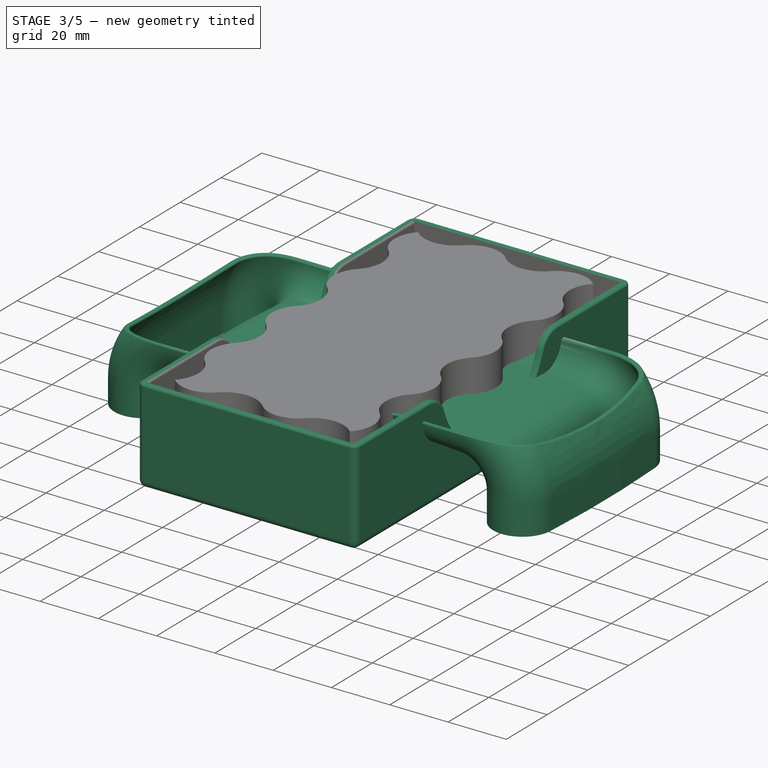
[diagram: stage 3 of 5 — iso view after this stage's code; geometry added in this stage tinted green]
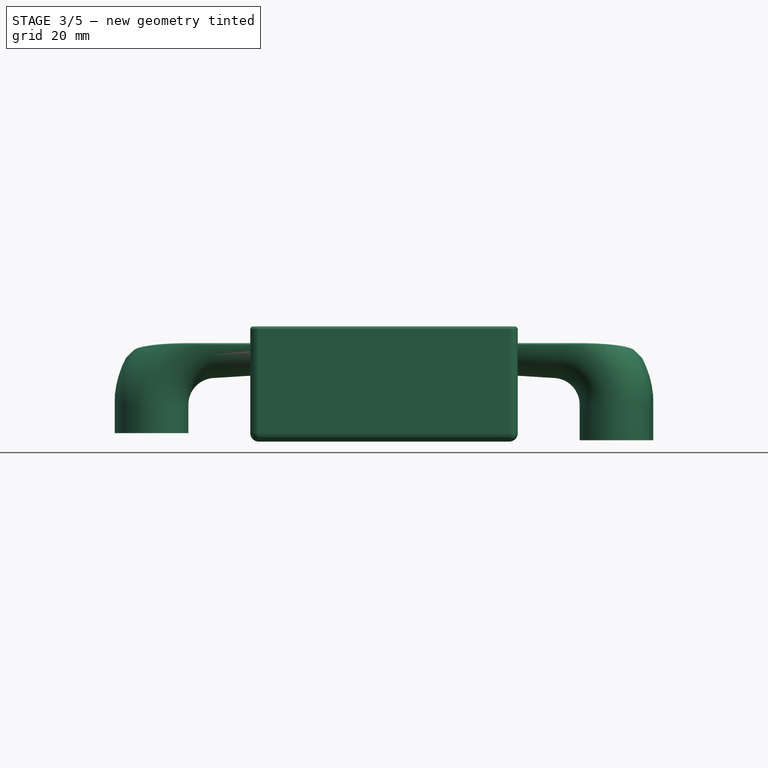
[diagram: stage 3 of 5 — front view after this stage's code; geometry added in this stage tinted green]
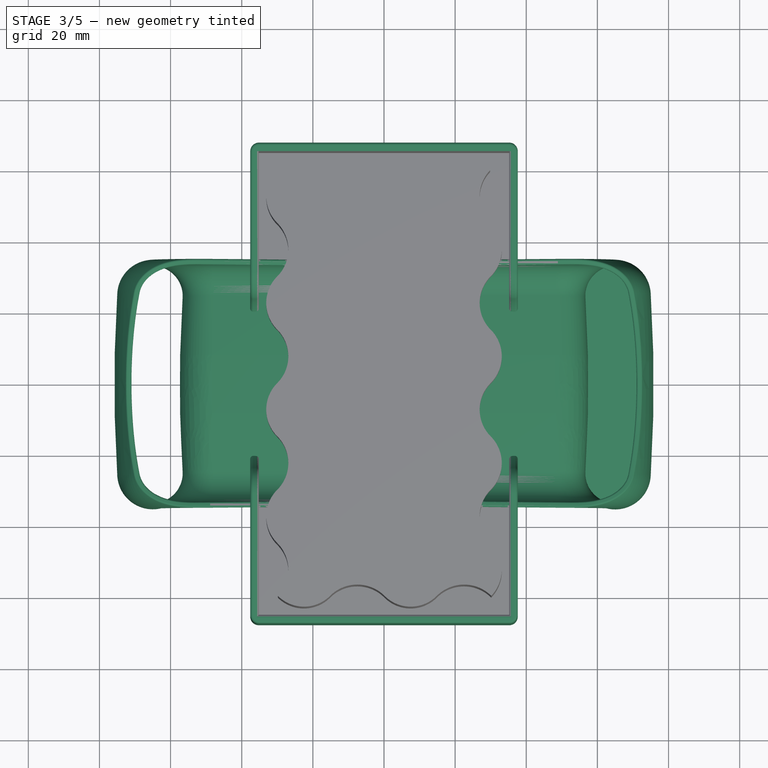
[diagram: stage 3 of 5 — top view after this stage's code; geometry added in this stage tinted green]
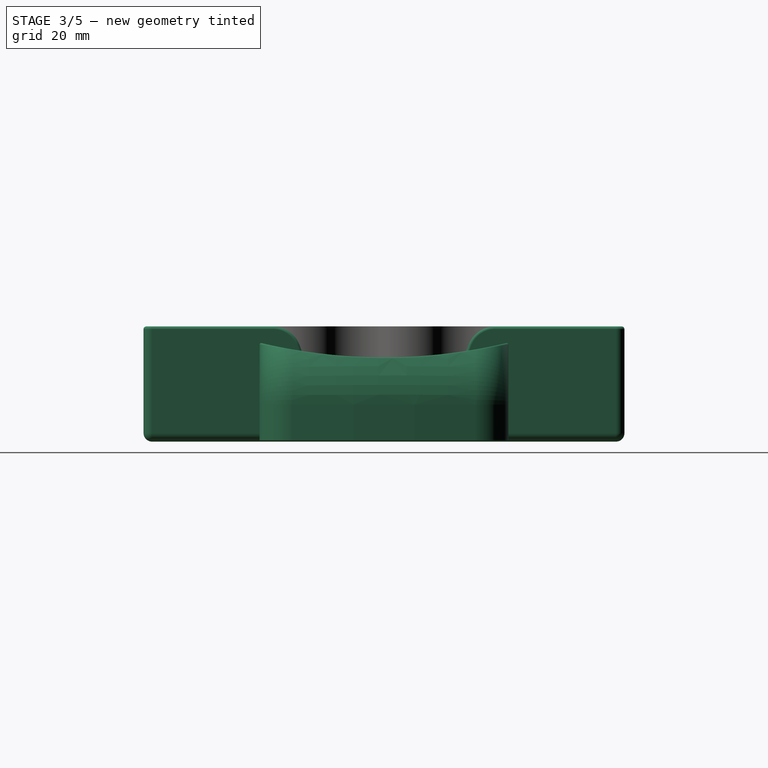
[diagram: stage 3 of 5 — right view after this stage's code; geometry added in this stage tinted green]
FEATURE [PartDesign::Body] Body001  label="Modèle 2"
  AllowCompound = false
  Group = -> [Sketch003,Sketch004,AdditivePipe,Sketch005,Pad,Binder,Pocket,Pocket001,Sketch006]
  Origin = -> Origin001
  Tip = -> Pocket001
FEATURE [Sketcher::SketchObject] Sketch007  label="Profile"
  ArcFitTolerance = 1e-06
  AttachmentSupport = -> [XY_Plane002]
  ExternalTypes = [0]
  FullyConstrained = true
  MakeInternals = false
  MapMode = 5
  sketch-geometry (9):
    g0: ArcOfCircle CenterX=324.198 CenterY=0 CenterZ=0 NormalX=0 NormalY=0 NormalZ=1 AngleXU=0 Radius=400 StartAngle=3.07744 EndAngle=3.20574
    g1: ArcOfCircle CenterX=-64.9999 CenterY=25.0005 CenterZ=0 NormalX=0 NormalY=0 NormalZ=1 AngleXU=0 Radius=10 StartAngle=6.21904 EndAngle=9.36063
    g2: ArcOfCircle CenterX=-65 CenterY=-24.9995 CenterZ=0 NormalX=0 NormalY=0 NormalZ=1 AngleXU=0 Radius=10 StartAngle=3.20574 EndAngle=6.34733
    g3: ArcOfCircle CenterX=324.198 CenterY=0 CenterZ=0 NormalX=0 NormalY=0 NormalZ=1 AngleXU=0 Radius=380 StartAngle=3.07744 EndAngle=3.20574
    g4: LineSegment [constr] StartX=-65 StartY=35.0005 StartZ=0 EndX=-65 EndY=-34.9995 EndZ=0
    g5: ArcOfCircle CenterX=324.198 CenterY=0 CenterZ=0 NormalX=0 NormalY=0 NormalZ=1 AngleXU=0 Radius=398.4 StartAngle=3.07744 EndAngle=3.20574
    g6: ArcOfCircle CenterX=-64.9999 CenterY=25.0005 CenterZ=0 NormalX=0 NormalY=0 NormalZ=1 AngleXU=0 Radius=8.4 StartAngle=6.21904 EndAngle=9.36063
    g7: ArcOfCircle CenterX=-65 CenterY=-24.9995 CenterZ=0 NormalX=0 NormalY=0 NormalZ=1 AngleXU=0 Radius=8.4 StartAngle=3.20574 EndAngle=6.34733
    g8: ArcOfCircle CenterX=324.198 CenterY=0 CenterZ=0 NormalX=0 NormalY=0 NormalZ=1 AngleXU=0 Radius=381.6 StartAngle=3.07744 EndAngle=3.20574
  constraints (23):
    c: Coincident(g0,g3)
    c: Tangent(g3,g2) = 1.5708
    c: Tangent(g3,g1) = 1.5708
    c: Tangent(g0,g2) = -1.5708
    c: Tangent(g0,g1) = -1.5708
    c: PointOnObject(g0,g-1)
    c: PointOnObject(g4,g1)
    c: PointOnObject(g4,g2)
    c: Vertical(g4)
    c: PointOnObject(g2,g4)
    c: DistanceY(g4,g4) = 70
    c: DistanceX(g4,g-1) = 65
    c: Radius(g0) = 400
    c: Coincident(g5,g8)
    c: Tangent(g8,g7) = 1.5708
    c: Tangent(g8,g6) = 1.5708
    c: Tangent(g5,g7) = -1.5708
    c: Tangent(g5,g6) = -1.5708
    c: Distance(g6,g1) = 1.6
    c: Coincident(g1,g6)
    c: Coincident(g2,g7)
    c: Radius(g2) = 10
    c: Coincident(g0,g5)
FEATURE [Sketcher::SketchObject] Sketch008  label="Path001"
  ArcFitTolerance = 1e-06
  AttachmentSupport = -> [XZ_Plane002]
  ExternalTypes = [0]
  FullyConstrained = true
  MakeInternals = false
  MapMode = 5
  Placement = pos=(0,0,0) rot=(1,0,0;1.5708rad)
  sketch-geometry (5):
    g0: ArcOfCircle CenterX=-47.5 CenterY=8 CenterZ=0 NormalX=0 NormalY=0 NormalZ=1 AngleXU=0 Radius=20 StartAngle=1.65278 EndAngle=3.14159
    g1: ArcOfCircle CenterX=47.5 CenterY=8 CenterZ=0 NormalX=0 NormalY=0 NormalZ=1 AngleXU=0 Radius=20 StartAngle=1e-16 EndAngle=1.48881
    g2: LineSegment StartX=-67.5 StartY=8 StartZ=0 EndX=-67.5 EndY=0 EndZ=0
    g3: LineSegment StartX=67.5 StartY=8 StartZ=0 EndX=67.5 EndY=0 EndZ=0
    g4: ArcOfCircle CenterX=0 CenterY=-570.052 CenterZ=0 NormalX=0 NormalY=0 NormalZ=1 AngleXU=0 Radius=600 StartAngle=1.48881 EndAngle=1.65278
  constraints (14):
    c: Tangent(g1,g3) = 1.5708
    c: Vertical(g3)
    c: Equal(g0,g1)
    c: Tangent(g0,g2) = -1.5708
    c: DistanceX(g2,g3) = 135
    c: Radius(g0) = 20
    c: Distance(g2,g2) = 8
    c: PointOnObject(g2,g-1)
    c: Symmetric(g1,g0,g-2)
    c: Horizontal(g3,g2)
    c: PointOnObject(g4,g-2)
    c: Radius(g4) = 600
    c: Tangent(g4,g0) = -1.5708
    c: Tangent(g4,g1) = -1.5708
FEATURE [PartDesign::AdditivePipe] AdditivePipe002
  AuxiliaryCurvilinear = true
  AuxiliarySpineTangent = false
  Binormal = (0,0,0)
  Mode = 0
  Profile = -> Sketch007
  Refine = true
  Spine = -> Sketch008
  SpineTangent = false
  Suppressed = false
  Transformation = 0
  Transition = 0
FEATURE [Sketcher::SketchObject] Sketch009
  ArcFitTolerance = 1e-06
  AttachmentSupport = -> [YZ_Plane002]
  ExternalGeometry = -> [AdditivePipe002]
  ExternalTypes = [0]
  FullyConstrained = true
  MakeInternals = false
  MapMode = 5
  Placement = pos=(0,0,0) rot=(0.57735,0.57735,0.57735;2.0944rad)
  sketch-geometry (3):
    g0: ArcOfCircle CenterX=0 CenterY=171.301 CenterZ=0 NormalX=0 NormalY=0 NormalZ=1 AngleXU=0 Radius=150 StartAngle=4.20772 EndAngle=5.21705
    g1: LineSegment StartX=-72.527 StartY=40 StartZ=0 EndX=72.527 EndY=40 EndZ=0
    g2: GeomPoint X=35.0005 Y=25.4411 Z=0
  constraints (9):
    c: PointOnObject(g0,g-2)
    c: Coincident(g1,g0)
    c: Coincident(g1,g0)
    c: Horizontal(g1)
    c: DistanceY(g-1,g0) = 40
    c: Radius(g0) = 150
    c: PointOnObject(g2,g0)
    c: Horizontal(g2,g-3)
    c: PointOnObject(g2,g-3)
FEATURE [PartDesign::Pocket] Pocket002
  BaseFeature = -> AdditivePipe002
  Direction = (-1,0,0)
  Length = 5
  Length2 = 5
  Profile = -> Sketch009
  ReferenceAxis = -> Sketch009 [N_Axis]
  Refine = true
  SideType = 2
  Suppressed = false
  Type = 1
  Type2 = 0
FEATURE [PartDesign::Fillet] Fillet001
  Base = -> Pocket002 [Face18]
  BaseFeature = -> Pocket002
  Radius = 0.5
  Refine = true
  SupportTransform = false
  Suppressed = false
  UseAllEdges = false
FEATURE [PartDesign::Pad] Pad001
  BaseFeature = -> Fillet001
  Direction = (2.2e-15,4e-16,1)
  Length = 2
  Length2 = 10
  Profile = -> Fillet001 [Edge13,Edge26,Edge45,Edge44]
  Refine = true
  Reversed = true
  SideType = 0
  Suppressed = false
  Type = 0
  Type2 = 0
FEATURE [PartDesign::Thickness] Thickness
  Base = -> Pad004 [Face6]
  BaseFeature = -> Pad004
  Intersection = false
  Join = 0
  Mode = 0
  Refine = true
  SupportTransform = false
  Suppressed = false
  Value = 2.4
FEATURE [Sketcher::SketchObject] Sketch015
  ArcFitTolerance = 1e-06
  AttachmentSupport = -> [YZ_Plane004]
  ExternalGeometry = -> [Thickness]
  ExternalTypes = [0]
  FullyConstrained = true
  MakeInternals = false
  MapMode = 5
  Placement = pos=(0,0,0) rot=(0.57735,0.57735,0.57735;2.0944rad)
  sketch-geometry (4):
    g0: ArcOfCircle CenterX=0 CenterY=32.6 CenterZ=0 NormalX=0 NormalY=0 NormalZ=1 AngleXU=0 Radius=25 StartAngle=3.4686 EndAngle=5.95618
    g1: LineSegment StartX=-31.2512 StartY=30 StartZ=0 EndX=31.2512 EndY=30 EndZ=0
    g2: ArcOfCircle CenterX=-31.2512 CenterY=22 CenterZ=0 NormalX=0 NormalY=0 NormalZ=1 AngleXU=0 Radius=8 StartAngle=0.327009 EndAngle=1.5708
    g3: ArcOfCircle CenterX=31.2512 CenterY=22 CenterZ=0 NormalX=0 NormalY=0 NormalZ=1 AngleXU=0 Radius=8 StartAngle=1.5708 EndAngle=2.81458
  constraints (13):
    c: PointOnObject(g0,g-2)
    c: Horizontal(g1)
    c: PointOnObject(g1,g-3)
    c: Radius(g0) = 25
    c: Tangent(g3,g-3) = -1.5708
    c: Tangent(g2,g-3) = -1.5708
    c: Equal(g2,g3)
    c: Radius(g3) = 8
    c: Tangent(g0,g2) = 1.5708
    c: Tangent(g0,g3) = 1.5708
    c: Vertical(g1,g2)
    c: Vertical(g1,g3)
    c: Distance(g0,g-4) = 10
FEATURE [PartDesign::Pocket] Pocket005
  BaseFeature = -> Thickness
  Direction = (-1,0,0)
  Length = 5
  Length2 = 5
  Profile = -> Sketch015
  ReferenceAxis = -> Sketch015 [N_Axis]
  Refine = true
  SideType = 2
  Suppressed = false
  Type = 1
  Type2 = 0
FEATURE [PartDesign::Fillet] Fillet006
  Base = -> Pocket005 [Face5]
  BaseFeature = -> Pocket005
  Radius = 0.8
  Refine = true
  SupportTransform = false
  Suppressed = false
  UseAllEdges = false
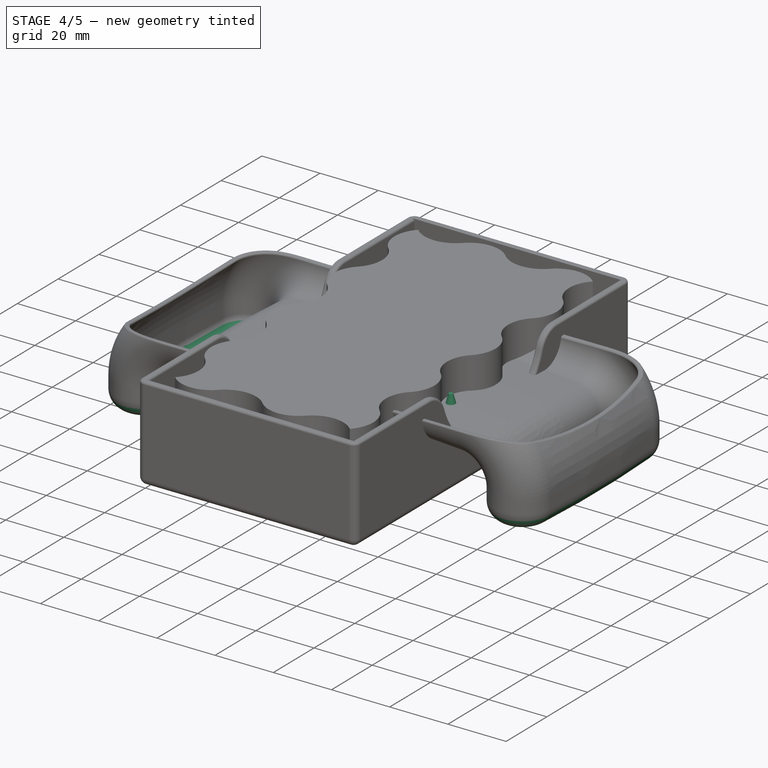
[diagram: stage 4 of 5 — iso view after this stage's code; geometry added in this stage tinted green]
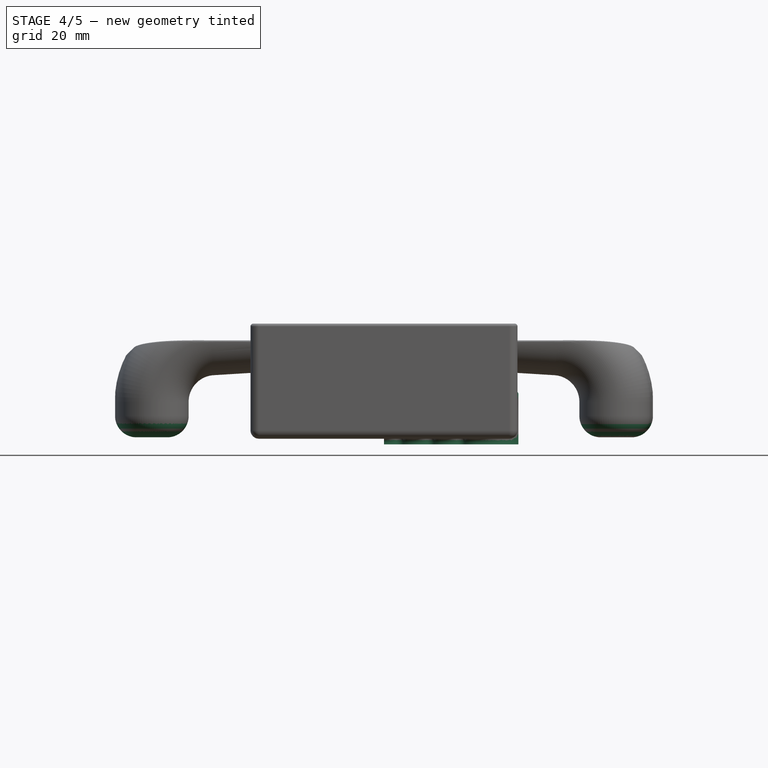
[diagram: stage 4 of 5 — front view after this stage's code; geometry added in this stage tinted green]
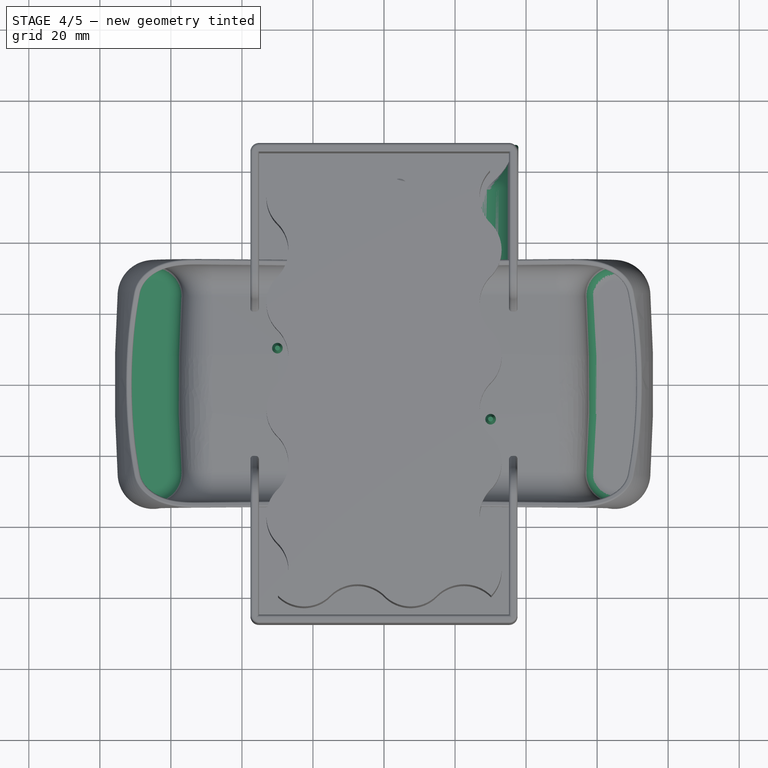
[diagram: stage 4 of 5 — top view after this stage's code; geometry added in this stage tinted green]
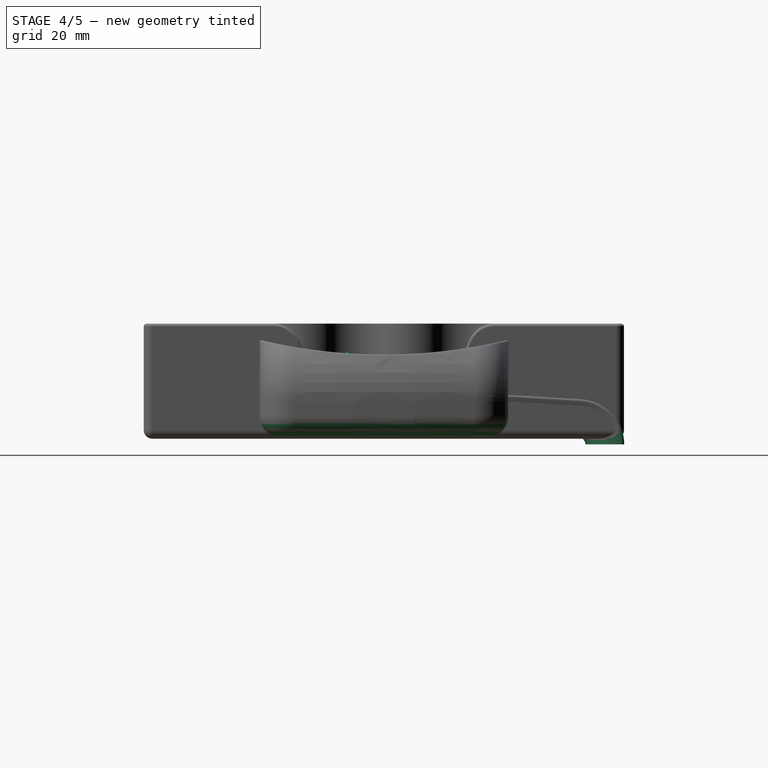
[diagram: stage 4 of 5 — right view after this stage's code; geometry added in this stage tinted green]
FEATURE [PartDesign::Body] Body  label="Modèle 1"
  AllowCompound = false
  Group = -> [Sketch,Sketch001,Sketch002,AdditivePipe001,Fillet,Mirrored]
  Origin = -> Origin
  Tip = -> Mirrored
FEATURE [Sketcher::SketchObject] Sketch003  label="Half profile"
  ArcFitTolerance = 1e-06
  AttachmentSupport = -> [XZ_Plane001]
  ExternalTypes = [0]
  FullyConstrained = true
  MakeInternals = false
  MapMode = 5
  Placement = pos=(0,0,0) rot=(1,0,0;1.5708rad)
  sketch-geometry (18):
    g0: ArcOfCircle CenterX=26 CenterY=12 CenterZ=0 NormalX=0 NormalY=0 NormalZ=1 AngleXU=0 Radius=10.4 StartAngle=4.71239 EndAngle=6.11574
    g1: ArcOfCircle CenterX=37.0433 CenterY=10.1333 CenterZ=0 NormalX=0 NormalY=0 NormalZ=1 AngleXU=0 Radius=0.8 StartAngle=6.11574 EndAngle=9.25733
    g2: ArcOfCircle CenterX=26 CenterY=12 CenterZ=0 NormalX=0 NormalY=0 NormalZ=1 AngleXU=0 Radius=12 StartAngle=4.71239 EndAngle=6.11574
    g3: LineSegment StartX=0 StartY=0 StartZ=0 EndX=0 EndY=1.6 EndZ=0
    g4: ArcOfCircle CenterX=26 CenterY=4.90824 CenterZ=0 NormalX=0 NormalY=0 NormalZ=1 AngleXU=0 Radius=3.30824 StartAngle=3.9983 EndAngle=4.71239
    g5: ArcOfCircle CenterX=21.6667 CenterY=-0.0917611 CenterZ=0 NormalX=0 NormalY=0 NormalZ=1 AngleXU=0 Radius=3.30824 StartAngle=0.856706 EndAngle=2.28489
    g6: ArcOfCircle CenterX=17.3333 CenterY=4.90824 CenterZ=0 NormalX=0 NormalY=0 NormalZ=1 AngleXU=0 Radius=3.30824 StartAngle=3.9983 EndAngle=5.42648
    g7: ArcOfCircle CenterX=13 CenterY=-0.0917611 CenterZ=0 NormalX=0 NormalY=0 NormalZ=1 AngleXU=0 Radius=3.30824 StartAngle=0.856706 EndAngle=2.28489
    g8: ArcOfCircle CenterX=8.66667 CenterY=4.90824 CenterZ=0 NormalX=0 NormalY=0 NormalZ=1 AngleXU=0 Radius=3.30824 StartAngle=3.9983 EndAngle=5.42648
    g9: ArcOfCircle CenterX=4.33333 CenterY=-0.0917611 CenterZ=0 NormalX=0 NormalY=0 NormalZ=1 AngleXU=0 Radius=3.30824 StartAngle=0.856706 EndAngle=2.28489
    g10: ArcOfCircle CenterX=0 CenterY=4.90824 CenterZ=0 NormalX=0 NormalY=0 NormalZ=1 AngleXU=0 Radius=3.30824 StartAngle=4.71239 EndAngle=5.42648
    g11: ArcOfCircle CenterX=0 CenterY=4.90824 CenterZ=0 NormalX=0 NormalY=0 NormalZ=1 AngleXU=0 Radius=4.90824 StartAngle=4.71239 EndAngle=5.42648
    g12: ArcOfCircle CenterX=4.33333 CenterY=-0.0917611 CenterZ=0 NormalX=0 NormalY=0 NormalZ=1 AngleXU=0 Radius=1.70824 StartAngle=0.856706 EndAngle=2.28489
    g13: ArcOfCircle CenterX=8.66667 CenterY=4.90824 CenterZ=0 NormalX=0 NormalY=0 NormalZ=1 AngleXU=0 Radius=4.90824 StartAngle=3.9983 EndAngle=5.42648
    g14: ArcOfCircle CenterX=13 CenterY=-0.0917611 CenterZ=0 NormalX=0 NormalY=0 NormalZ=1 AngleXU=0 Radius=1.70824 StartAngle=0.856706 EndAngle=2.28489
    g15: ArcOfCircle CenterX=17.3333 CenterY=4.90824 CenterZ=0 NormalX=0 NormalY=0 NormalZ=1 AngleXU=0 Radius=4.90824 StartAngle=3.9983 EndAngle=5.42648
    g16: ArcOfCircle CenterX=21.6667 CenterY=-0.0917611 CenterZ=0 NormalX=0 NormalY=0 NormalZ=1 AngleXU=0 Radius=1.70824 StartAngle=0.856706 EndAngle=2.28489
    g17: ArcOfCircle CenterX=26 CenterY=4.90824 CenterZ=0 NormalX=0 NormalY=0 NormalZ=1 AngleXU=0 Radius=4.90824 StartAngle=3.9983 EndAngle=4.71239
  constraints (49):
    c: Tangent(g0,g1) = 1.5708
    c: Coincident(g2,g0)
    c: Vertical(g3)
    c: Tangent(g2,g1) = -1.5708
    c: DistanceX(g3,g2) = 26
    c: DistanceY(g3,g3) = 1.6
    c: DistanceX(g-1,g1) = 37.0433
    c: Radius(g2) = 12
    c: Equal(g8,g7)
    c: Equal(g7,g6)
    c: Equal(g6,g5)
    c: Equal(g5,g4)
    c: Tangent(g8,g7) = 1.5708
    c: Tangent(g7,g6) = 1.5708
    c: Tangent(g6,g5) = 1.5708
    c: Tangent(g5,g4) = 1.5708
    c: PointOnObject(g10,g-2)
    c: Equal(g10,g9)
    c: Equal(g9,g8)
    c: Tangent(g9,g8) = 1.5708
    c: Tangent(g10,g9) = 1.5708
    c: Tangent(g4,g0) = -1.5708
    c: Horizontal(g9,g7)
    c: Horizontal(g7,g5)
    c: Horizontal(g10,g8)
    c: Horizontal(g8,g6)
    c: Horizontal(g6,g4)
    c: DistanceY(g5,g4) = 5
    c: Vertical(g0,g2)
    c: Coincident(g3,g10)
    c: Distance(g1,g-1) = 10
    c: Coincident(g3,g-1)
    c: PointOnObject(g2,g-1)
    c: Coincident(g11,g10)
    c: PointOnObject(g11,g-1)
    c: Coincident(g12,g9)
    c: Coincident(g13,g8)
    c: Coincident(g14,g7)
    c: Coincident(g15,g6)
    c: Coincident(g16,g5)
    c: Coincident(g17,g4)
    c: Coincident(g17,g2)
    c: Tangent(g17,g16) = 1.5708
    c: Tangent(g14,g13) = 1.5708
    c: Tangent(g12,g11) = 1.5708
    c: Tangent(g13,g12) = 1.5708
    c: Vertical(g11,g3)
    c: Tangent(g15,g14) = 1.5708
    c: Tangent(g16,g15) = 1.5708
FEATURE [Sketcher::SketchObject] Sketch004  label="Half path"
  ArcFitTolerance = 1e-06
  AttachmentSupport = -> [YZ_Plane001]
  ExternalTypes = [0]
  FullyConstrained = true
  MakeInternals = false
  MapMode = 5
  Placement = pos=(0,0,0) rot=(0.57735,0.57735,0.57735;2.0944rad)
  sketch-geometry (2):
    g0: ArcOfCircle CenterX=54.7095 CenterY=-3.98944 CenterZ=0 NormalX=0 NormalY=0 NormalZ=1 AngleXU=0 Radius=4 StartAngle=0 EndAngle=1.4981
    g1: ArcOfCircle CenterX=0 CenterY=-755.25 CenterZ=0 NormalX=0 NormalY=0 NormalZ=1 AngleXU=0 Radius=757.25 StartAngle=1.4981 EndAngle=1.5708
  constraints (8):
    c: Horizontal(g0,g0)
    c: Radius(g0) = 4
    c: PointOnObject(g1,g-2)
    c: PointOnObject(g1,g-2)
    c: DistanceX(g-1,g0) = 55
    c: DistanceY(g-1,g1) = 2
    c: Tangent(g0,g1) = -1.5708
    c: PointOnObject(g0,g-1)
FEATURE [PartDesign::AdditivePipe] AdditivePipe
  AuxiliaryCurvilinear = true
  AuxiliarySpineTangent = false
  Binormal = (0,0,0)
  Mode = 0
  Placement = pos=(0,0,0) rot=(1,0,0;1.5708rad)
  Profile = -> Sketch003
  Refine = true
  Spine = -> Sketch004
  SpineTangent = false
  Suppressed = false
  Transformation = 0
  Transition = 0
FEATURE [PartDesign::Mirrored] Mirrored001
  BaseFeature = -> Pad001
  MirrorPlane = -> YZ_Plane002
  Originals = -> [Pad001]
  Refine = true
  Suppressed = false
  TransformMode = 0
FEATURE [PartDesign::Fillet] Fillet002
  Base = -> Mirrored001 [Face3,Face1]
  BaseFeature = -> Mirrored001
  Radius = 6
  Refine = true
  SupportTransform = false
  Suppressed = false
  UseAllEdges = false
FEATURE [PartDesign::Fillet] Fillet003
  Base = -> Fillet002 [Face64,Face67]
  BaseFeature = -> Fillet002
  Radius = 4
  Refine = true
  SupportTransform = false
  Suppressed = false
  UseAllEdges = false
FEATURE [Sketcher::SketchObject] Sketch010
  ArcFitTolerance = 1e-06
  AttachmentOffset = pos=(0,0,19) rot=(0,0,1;0rad)
  AttachmentSupport = -> [XY_Plane002]
  ExternalTypes = [0]
  FullyConstrained = true
  MakeInternals = false
  MapMode = 5
  Placement = pos=(0,0,19) rot=(0,0,1;0rad)
  sketch-geometry (1):
    g0: Circle CenterX=-10 CenterY=10 CenterZ=0 NormalX=0 NormalY=0 NormalZ=1 AngleXU=0 Radius=1.5
  constraints (3):
    c: DistanceY(g-1,g0) = 10
    c: DistanceX(g0,g-1) = 10
    c: Diameter(g0) = 3
FEATURE [PartDesign::Pad] Pad002
  BaseFeature = -> Fillet003
  Direction = (0,0,1)
  Length = 3
  Length2 = 10
  Profile = -> Sketch010
  ReferenceAxis = -> Sketch010 [N_Axis]
  Refine = true
  SideType = 0
  Suppressed = false
  TaperAngle = -15
  Type = 0
  Type2 = 0
FEATURE [PartDesign::LinearPattern] LinearPattern
  Direction = -> Sketch010 [H_Axis]
  Length = 20
  Length2 = 100
  Mode = 1
  Mode2 = 0
  Occurrences = 2
  Occurrences2 = 1
  Offset = 20
  Offset2 = 10
  Refine = true
  Reversed = true
  Reversed2 = false
  SpacingPattern = [0]
  SpacingPattern2 = [0]
  Spacings = [-1]
  Spacings2 = [0]
  Suppressed = false
  TransformMode = 0
FEATURE [PartDesign::PolarPattern] PolarPattern
  Angle = 360
  Axis = -> Sketch010 [N_Axis]
  Mode = 0
  Occurrences = 2
  Offset = 120
  Refine = true
  SpacingPattern = [0]
  Spacings = [-1,-1,-1]
  Suppressed = false
  TransformMode = 0
FEATURE [PartDesign::Mirrored] Mirrored002
  MirrorPlane = -> XZ_Plane002
  Refine = true
  Suppressed = false
  TransformMode = 0
FEATURE [PartDesign::MultiTransform] MultiTransform
  BaseFeature = -> Pad002
  Originals = -> [Pad002]
  Refine = true
  Suppressed = false
  TransformMode = 0
  Transformations = -> [LinearPattern,PolarPattern,Mirrored002]
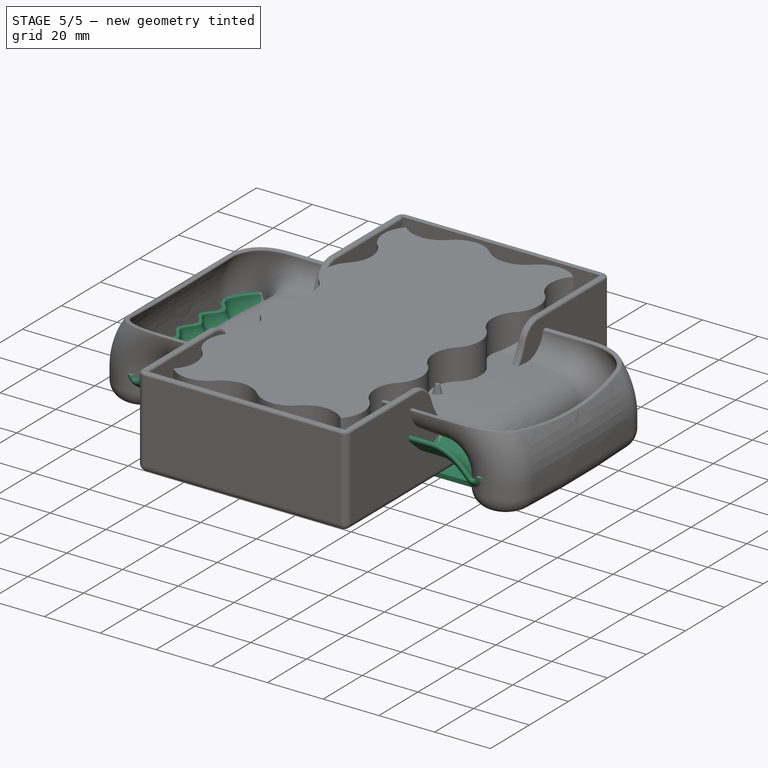
[diagram: stage 5 of 5 — iso view after this stage's code; geometry added in this stage tinted green]
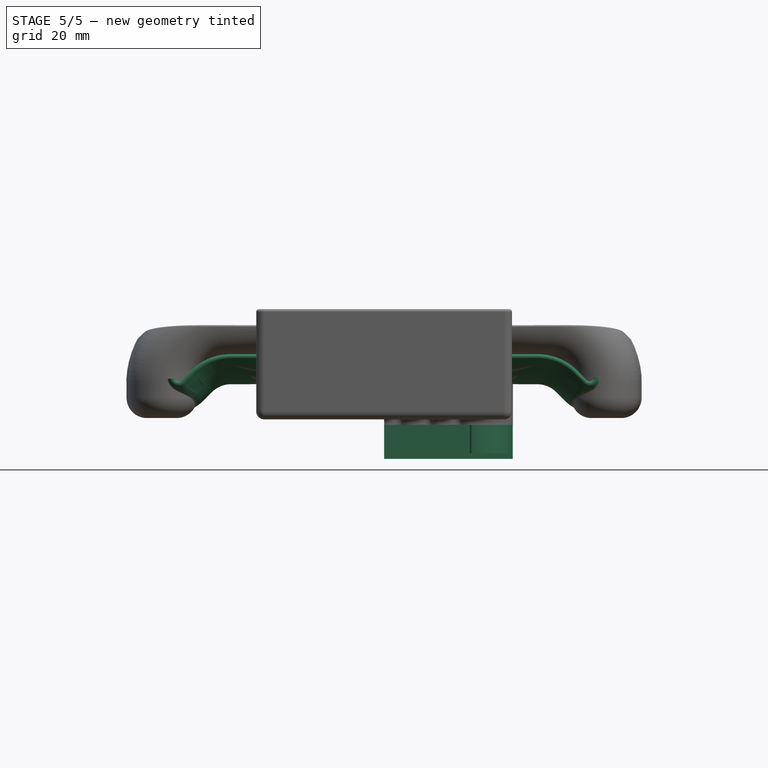
[diagram: stage 5 of 5 — front view after this stage's code; geometry added in this stage tinted green]
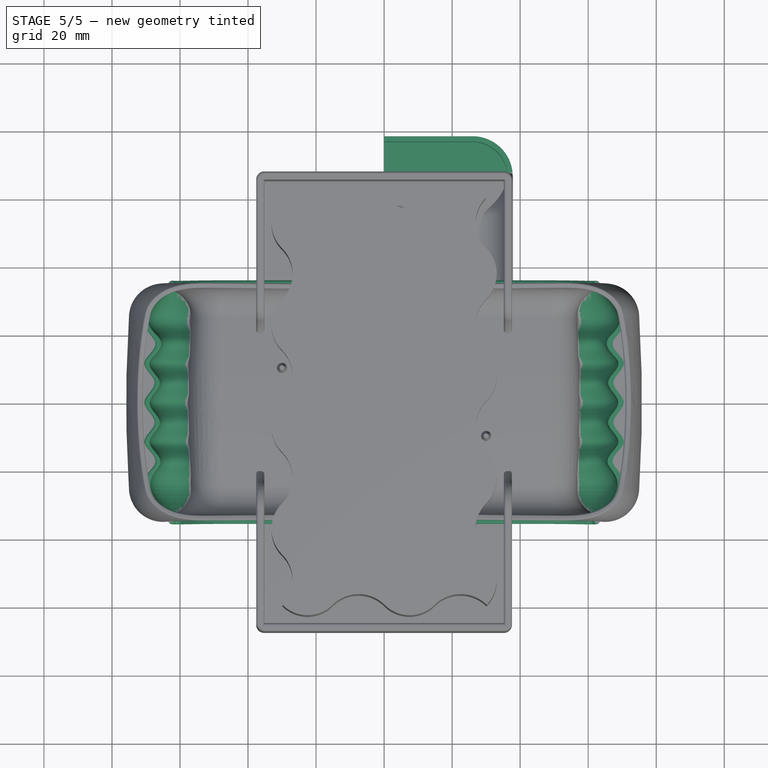
[diagram: stage 5 of 5 — top view after this stage's code; geometry added in this stage tinted green]
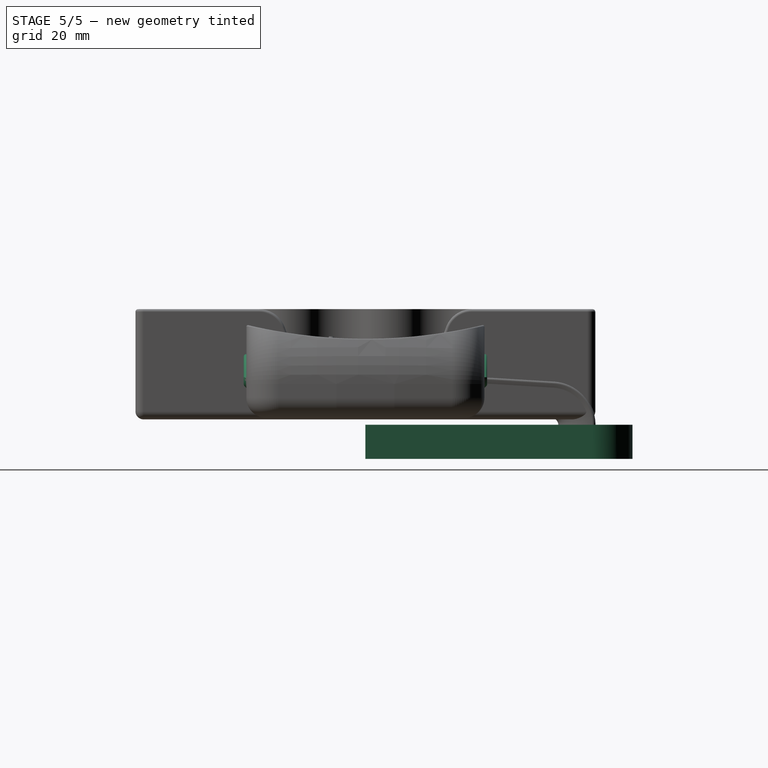
[diagram: stage 5 of 5 — right view after this stage's code; geometry added in this stage tinted green]
FEATURE [Sketcher::SketchObject] Sketch  label="Path"
  ArcFitTolerance = 1e-06
  ExternalTypes = [0]
  FullyConstrained = true
  MakeInternals = false
  Placement = pos=(0,0,0) rot=(1,0,0;1.5708rad)
  sketch-geometry (4):
    g0: LineSegment StartX=-53.3848 StartY=2.92893 StartZ=0 EndX=-50.6569 EndY=5.65685 EndZ=0
    g1: ArcOfCircle CenterX=-45 CenterY=4e-16 CenterZ=0 NormalX=0 NormalY=0 NormalZ=1 AngleXU=0 Radius=8 StartAngle=1.5708 EndAngle=2.35619
    g2: LineSegment StartX=-45 StartY=8 StartZ=0 EndX=0 EndY=8 EndZ=0
    g3: ArcOfCircle CenterX=-60.4558 CenterY=10 CenterZ=0 NormalX=0 NormalY=0 NormalZ=1 AngleXU=0 Radius=10 StartAngle=3.14159 EndAngle=5.49779
  constraints (13):
    c: Tangent(g0,g1) = 1.5708
    c: Tangent(g1,g2) = 1.5708
    c: Horizontal(g2)
    c: Radius(g1) = 8
    c: Distance(g2,g-1) = 8
    c: Angle(g-1,g0) = 0.785398
    c: PointOnObject(g2,g-2)
    c: DistanceX(g2,g2) = 45
    c: Tangent(g0,g3) = -1.5708
    c: Tangent(g3,g-1)
    c: Radius(g3) = 10
    c: Horizontal(g3,g3)
    c: DistanceX(g3,g-1) = 70.4558
FEATURE [Sketcher::SketchObject] Sketch001  label="Flat profile"
  ArcFitTolerance = 1e-06
  AttachmentSupport = -> [Sketch]
  ExternalTypes = [0]
  FullyConstrained = true
  MakeInternals = false
  MapMode = 7
  Placement = pos=(-53.3848,-7e-16,2.92893) rot=(0.678598,-0.678598,-0.281085;2.59356rad)
  sketch-geometry (4):
    g0: ArcOfCircle CenterX=-35 CenterY=-1e-16 CenterZ=0 NormalX=0 NormalY=0 NormalZ=1 AngleXU=0 Radius=1.6 StartAngle=1.5708 EndAngle=4.71239
    g1: ArcOfCircle CenterX=35 CenterY=1e-16 CenterZ=0 NormalX=0 NormalY=0 NormalZ=1 AngleXU=0 Radius=1.6 StartAngle=4.71239 EndAngle=7.85398
    g2: LineSegment StartX=-35 StartY=1.6 StartZ=0 EndX=35 EndY=1.6 EndZ=0
    g3: LineSegment StartX=-35 StartY=-1.6 StartZ=0 EndX=35 EndY=-1.6 EndZ=0
  constraints (9):
    c: Tangent(g0,g2) = 1.5708
    c: Tangent(g0,g3) = -1.5708
    c: Tangent(g1,g2) = 1.5708
    c: Tangent(g1,g3) = -1.5708
    c: Equal(g0,g1)
    c: Horizontal(g3)
    c: Distance(g0,g1) = 70
    c: Radius(g0) = 1.6
    c: Symmetric(g0,g1,g-1)
FEATURE [Sketcher::SketchObject] Sketch002  label="Wave profile"
  ArcFitTolerance = 1e-06
  AttachmentSupport = -> [Sketch]
  ExternalGeometry = -> [Sketch001]
  ExternalTypes = [0]
  FullyConstrained = false
  MakeInternals = false
  MapMode = 7
  Placement = pos=(-45,-1.8e-15,8) rot=(0.57735,-0.57735,-0.57735;2.0944rad)
  sketch-geometry (52):
    g0: ArcOfCircle CenterX=-35 CenterY=8 CenterZ=0 NormalX=0 NormalY=0 NormalZ=1 AngleXU=0 Radius=0.8 StartAngle=0.785398 EndAngle=3.92699
    g1: LineSegment StartX=-35.5657 StartY=7.43431 StartZ=0 EndX=-33.7272 EndY=5.59584 EndZ=0
    g2: LineSegment StartX=-34.4343 StartY=8.56569 StartZ=0 EndX=-32.5958 EndY=6.72721 EndZ=0
    g3-g12: Circle [constr] x10 (B-spline internal-alignment scaffolding for g13; pole/knot coordinates omitted)
    g13: BSplineCurve PolesCount=11 KnotsCount=9 Degree=3 IsPeriodic=0
    g14-g21: GeomPoint [constr] x8 (B-spline internal-alignment scaffolding for g13; pole/knot coordinates omitted)
    g22: ArcOfCircle CenterX=35 CenterY=8 CenterZ=0 NormalX=0 NormalY=0 NormalZ=1 AngleXU=0 Radius=0.8 StartAngle=5.49779 EndAngle=8.63938
    g23: LineSegment StartX=35.5657 StartY=7.43431 StartZ=0 EndX=33.7272 EndY=5.59584 EndZ=0
    g24: LineSegment StartX=34.4343 StartY=8.56569 StartZ=0 EndX=32.5958 EndY=6.72721 EndZ=0
    g25: LineSegment [constr] StartX=-5.90784 StartY=6.16071 StartZ=0 EndX=5.90784 EndY=6.16071 EndZ=0
    g26: LineSegment [constr] StartX=0 StartY=-3.5625 StartZ=0 EndX=11.8157 EndY=-3.5625 EndZ=0
    g27: LineSegment [constr] StartX=5.90784 StartY=8.08929 StartZ=0 EndX=17.7235 EndY=8.08929 EndZ=0
    g28: LineSegment [constr] StartX=23.6314 StartY=-4.5 StartZ=0 EndX=11.8157 EndY=-4.5 EndZ=0
    g29-g39: Circle [constr] x11 (B-spline internal-alignment scaffolding for g40; pole/knot coordinates omitted)
    g40: BSplineCurve PolesCount=11 KnotsCount=9 Degree=3 IsPeriodic=0
    g41-g49: GeomPoint [constr] x9 (B-spline internal-alignment scaffolding for g40; pole/knot coordinates omitted)
    g50: LineSegment [constr] StartX=-1e-16 StartY=1.6 StartZ=0 EndX=0 EndY=0 EndZ=0
    g51: LineSegment [constr] StartX=-5.90784 StartY=4.6 StartZ=0 EndX=-5.90784 EndY=3 EndZ=0
  constraints (76):
    c: Tangent(g0,g1) = -1.5708
    c: Parallel(g1,g2)
    c: Vertical(g-3,g0)
    c: Angle(g1,g-1) = 0.785398
    c: Equal(g1,g2)
    c: DistanceY(g-1,g0) = 8
    c: Weight(g3) = 1
    c: Equal(g3, g4-g12) x9
    c: InternalAlignment(g3-g12 -> g13) x10
    c: InternalAlignment(g14-g21 -> g13) x8
    c: Coincident(g3,g1)
    c: PointOnObject(g8,g-2)
    c: Symmetric(g13,g13,g-2)
    c: Tangent(g0,g2) = 1.5708
    c: Coincident(g23,g13)
    c: Symmetric(g22,g0,g-2)
    c: Tangent(g23,g22) = 1.5708
    c: Tangent(g24,g22) = -1.5708
    c: Equal(g0,g22)
    c: Parallel(g24,g23)
    c: PointOnObject(g12,g23)
    c: Symmetric(g7,g9,g-2)
    c: Symmetric(g5,g11,g-2)
    c: Symmetric(g4,g12,g-2)
    c: Symmetric(g6,g10,g-2)
    c: Horizontal(g16,g18)
    c: PointOnObject(g18,g-1)
    c: Coincident(g25,g7)
    c: Coincident(g25,g9)
    c: Horizontal(g24,g2)
    c: PointOnObject(g26,g-2)
    c: Coincident(g26,g10)
    c: Horizontal(g26)
    c: Coincident(g27,g11)
    c: Horizontal(g27)
    c: Equal(g27,g25)
    c: Equal(g25,g26)
    c: Horizontal(g15,g17)
    c: Distance(g15,g-1) = 3
    c: Vertical(g9,g27)
    c: Coincident(g28,g12)
    c: Horizontal(g28)
    c: Vertical(g10,g28)
    c: Equal(g26,g28)
    c: DistanceY(g4,g-1) = 4.5
    c: Distance(g2,g2) = 2.6
    c: Weight(g29) = 1
    c: Equal(g29, g31-g39) x9
    c: InternalAlignment(g29-g39 -> g40) x11
    c: InternalAlignment(g41-g49 -> g40) x9
    c: Coincident(g29,g2)
    c: Coincident(g39,g24)
    c: Vertical(g4,g30)
    c: Vertical(g5,g31)
    c: Vertical(g7,g33)
    c: Vertical(g6,g32)
    c: PointOnObject(g30,g2)
    c: PointOnObject(g38,g24)
    c: Vertical(g12,g38)
    c: Vertical(g10,g36)
    c: Vertical(g11,g37)
    c: Vertical(g9,g35)
    c: Vertical(g8,g34)
    c: Horizontal(g42,g44)
    c: Horizontal(g44,g46)
    c: Horizontal(g46,g48)
    c: Horizontal(g45,g47)
    c: Horizontal(g43,g45)
    c: DistanceY(g-1,g45) = 1.6
    c: Coincident(g50,g45)
    c: Coincident(g50,g-1)
    c: Coincident(g51,g44)
    c: Coincident(g51,g17)
    c: Equal(g51,g50)
    c: Radius(g0) = 0.8
    c: Horizontal(g30,g32)
FEATURE [PartDesign::AdditivePipe] AdditivePipe001
  AuxiliaryCurvilinear = true
  AuxiliarySpineTangent = false
  Binormal = (0,0,0)
  Mode = 0
  Placement = pos=(0,0,0) rot=(1,0,0;1.5708rad)
  Profile = -> Sketch002
  Refine = true
  Sections = -> [Sketch001]
  Spine = -> Sketch
  SpineTangent = false
  Suppressed = false
  Transformation = 0
  Transition = 0
FEATURE [PartDesign::Fillet] Fillet
  Base = -> AdditivePipe001 [Face1]
  BaseFeature = -> AdditivePipe001
  Placement = pos=(0,0,0) rot=(1,0,0;1.5708rad)
  Radius = 0.5
  Refine = true
  SupportTransform = false
  Suppressed = false
  UseAllEdges = false
FEATURE [PartDesign::Mirrored] Mirrored
  BaseFeature = -> Fillet
  MirrorPlane = -> YZ_Plane
  Originals = -> [AdditivePipe001]
  Placement = pos=(0,0,0) rot=(1,0,0;1.5708rad)
  Refine = true
  Suppressed = false
  TransformMode = 0
FEATURE [Sketcher::SketchObject] Sketch005
  ArcFitTolerance = 1e-06
  AttachmentSupport = -> [AdditivePipe]
  ExternalGeometry = -> [AdditivePipe]
  ExternalTypes = [0]
  FullyConstrained = true
  MakeInternals = false
  MapMode = 5
  Placement = pos=(0,-7e-16,-3.98944) rot=(1,0,0;3.14159rad)
  sketch-geometry (5):
    g0: ArcOfCircle CenterX=26 CenterY=-66.7095 CenterZ=0 NormalX=0 NormalY=0 NormalZ=1 AngleXU=0 Radius=11.8322 StartAngle=4.71239 EndAngle=6.28319
    g1: LineSegment StartX=26 StartY=-78.5416 StartZ=0 EndX=0 EndY=-78.5416 EndZ=0
    g2: LineSegment StartX=0 StartY=-78.5416 StartZ=0 EndX=0 EndY=0 EndZ=0
    g3: LineSegment StartX=0 StartY=0 StartZ=0 EndX=37.8322 EndY=0 EndZ=0
    g4: LineSegment StartX=37.8322 StartY=0 StartZ=0 EndX=37.8322 EndY=-66.7095 EndZ=0
  constraints (12):
    c: Tangent(g0,g1) = 1.5708
    c: Coincident(g1,g2)
    c: Coincident(g2,g-1)
    c: Vertical(g2)
    c: Coincident(g2,g3)
    c: PointOnObject(g3,g-1)
    c: Coincident(g3,g4)
    c: Coincident(g4,g-3)
    c: Vertical(g4)
    c: Horizontal(g1)
    c: Tangent(g0,g4) = 1.5708
    c: Vertical(g-3,g0)
FEATURE [PartDesign::Pad] Pad
  BaseFeature = -> AdditivePipe
  Direction = (0,0,-1)
  Length = 10
  Length2 = 10
  Placement = pos=(0,0,0) rot=(1,0,0;1.5708rad)
  Profile = -> Sketch005
  ReferenceAxis = -> Sketch005 [N_Axis]
  Refine = true
  SideType = 0
  Suppressed = false
  Type = 0
  Type2 = 0
FEATURE [PartDesign::SubShapeBinder] Binder
  BindCopyOnChange = 0
  BindMode = 0
  ClaimChildren = false
  Context = -> Body001 [Binder.]
  Fuse = false
  MakeFace = true
  Offset = -1.6
  OffsetFill = false
  OffsetIntersection = false
  OffsetJoinType = 0
  OffsetOpenResult = false
  PartialLoad = false
  Refine = true
  Relative = true
  Support = -> [Pad[Face6]]
  _Version = 2
FEATURE [PartDesign::Pocket] Pocket
  BaseFeature = -> Pad
  Direction = (-2e-16,0,-1)
  Length = 5
  Length2 = 5
  Placement = pos=(0,0,0) rot=(1,0,0;1.5708rad)
  Profile = -> Binder
  Refine = true
  SideType = 0
  Suppressed = false
  Type = 0
  Type2 = 0
FEATURE [Sketcher::SketchObject] Sketch006
  ArcFitTolerance = 1e-06
  AttachmentSupport = -> [Pocket]
  ExternalGeometry = -> [Pocket]
  ExternalTypes = [0]
  FullyConstrained = true
  MakeInternals = false
  MapMode = 5
  Placement = pos=(0,0,-3.98944) rot=(0,0,1;3.14159rad)
  sketch-geometry (8):
    g0: ArcOfCircle CenterX=-26 CenterY=-66.7095 CenterZ=0 NormalX=0 NormalY=0 NormalZ=1 AngleXU=0 Radius=10.2322 StartAngle=3.1547 EndAngle=4.71239
    g1: LineSegment StartX=-36.4 StartY=-62.7228 StartZ=0 EndX=-36.4 EndY=0 EndZ=0
    g2: LineSegment StartX=-36.4 StartY=0 StartZ=0 EndX=0 EndY=0 EndZ=0
    g3: LineSegment StartX=0 StartY=-76.9416 StartZ=0 EndX=0 EndY=0 EndZ=0
    g4: LineSegment StartX=0 StartY=-76.9416 StartZ=0 EndX=-26 EndY=-76.9416 EndZ=0
    g5: ArcOfCircle CenterX=-26 CenterY=-57.5095 CenterZ=0 NormalX=0 NormalY=0 NormalZ=1 AngleXU=0 Radius=0.8 StartAngle=4.71239 EndAngle=7.85398
    g6: ArcOfCircle CenterX=-26 CenterY=-68.7095 CenterZ=0 NormalX=0 NormalY=0 NormalZ=1 AngleXU=0 Radius=12 StartAngle=1.5708 EndAngle=2.61928
    g7: ArcOfCircle CenterX=-26 CenterY=-68.7095 CenterZ=0 NormalX=0 NormalY=0 NormalZ=1 AngleXU=0 Radius=10.4 StartAngle=1.5708 EndAngle=2.9612
  constraints (20):
    c: Coincident(g0,g-3)
    c: Coincident(g0,g-4)
    c: Vertical(g1)
    c: Coincident(g2,g1)
    c: Horizontal(g2)
    c: Vertical(g3)
    c: Coincident(g4,g3)
    c: Tangent(g4,g0) = 1.5708
    c: Coincident(g2,g-1)
    c: Coincident(g3,g2)
    c: Coincident(g5,g-6)
    c: Coincident(g5,g-7)
    c: Coincident(g7,g0)
    c: Equal(g-6,g6)
    c: PointOnObject(g6,g-6)
    c: Equal(g7,g-7)
    c: Tangent(g7,g5) = 1.5708
    c: Tangent(g6,g5) = -1.5708
    c: Coincident(g1,g6)
    c: Tangent(g7,g1)
FEATURE [PartDesign::Pocket] Pocket001
  BaseFeature = -> Pocket
  Direction = (0,0,-1)
  Length = 0
  Length2 = 5
  Offset = -1.6
  Placement = pos=(0,0,0) rot=(1,0,0;1.5708rad)
  Profile = -> Sketch006
  ReferenceAxis = -> Sketch006 [N_Axis]
  Refine = true
  SideType = 0
  Suppressed = false
  Type = 3
  Type2 = 0
  UpToFace = -> Pocket [Face7]
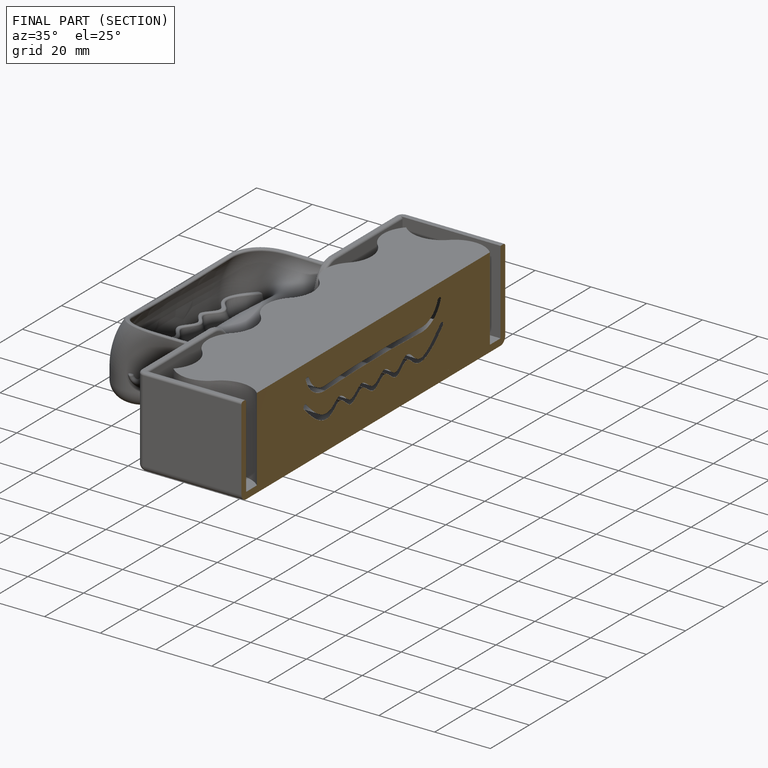
[diagram: finished part — half-section view (interior)]
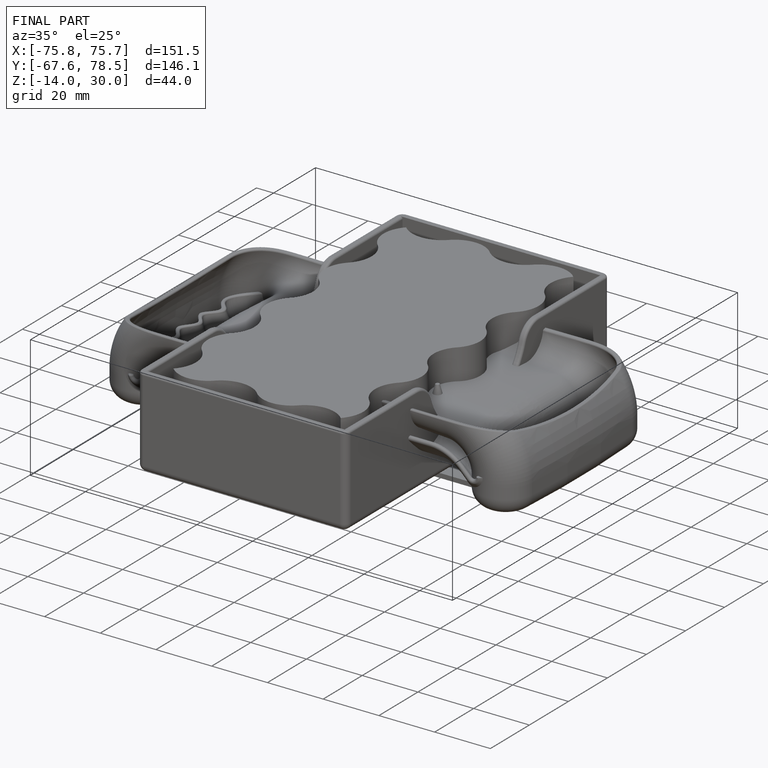
[diagram: finished part — iso view with bounding-box wireframe]
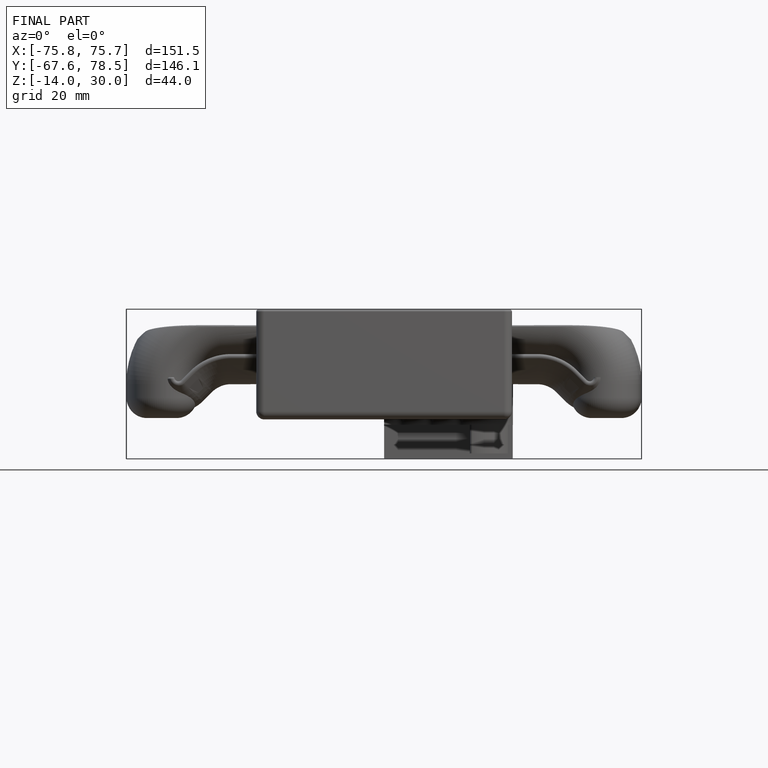
[diagram: finished part — front view with bounding-box wireframe]
